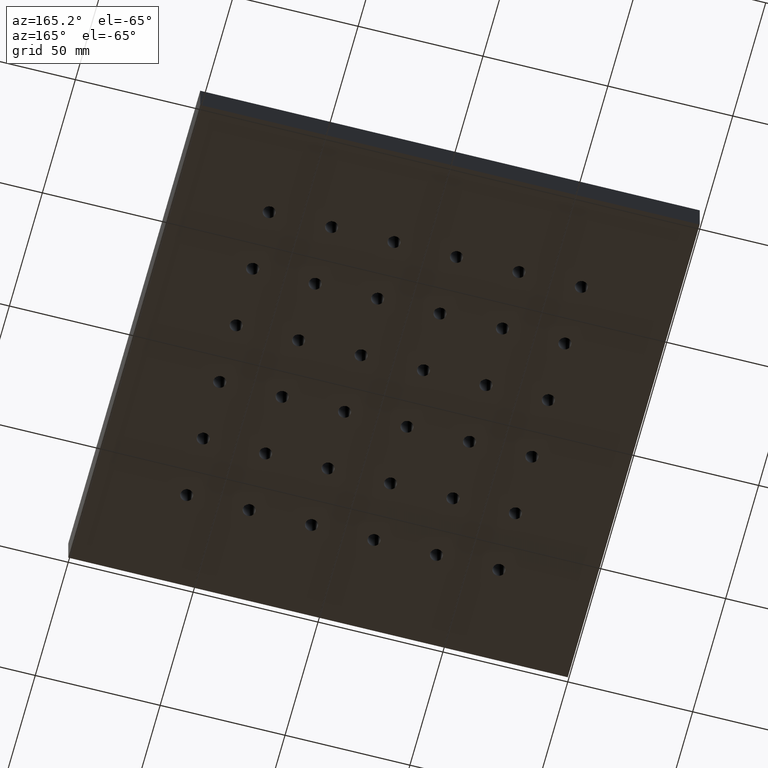
[diagram: clean part render]
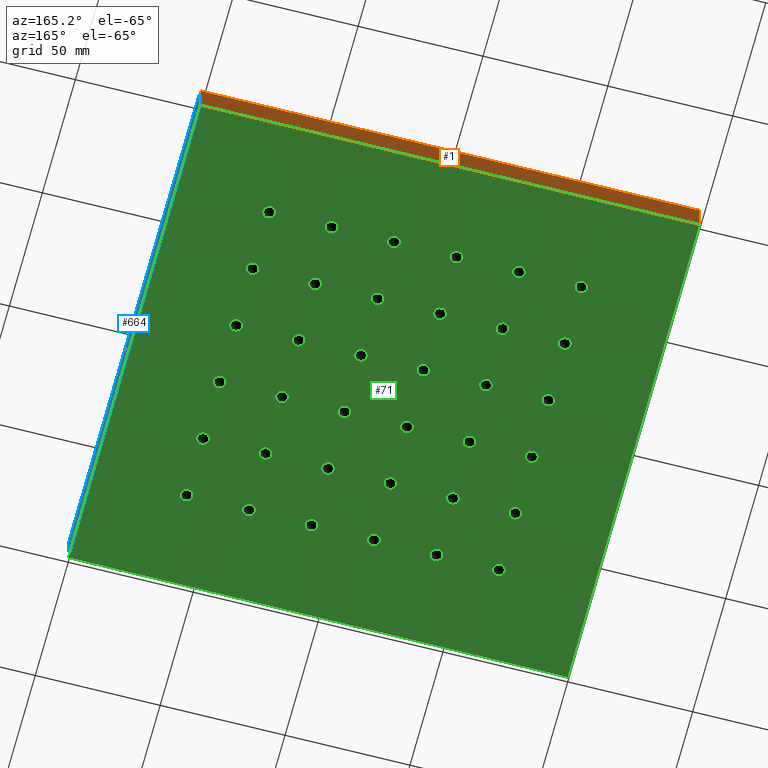
[diagram: same view with three faces highlighted in distinct colors, each labeled with its STEP entity id]
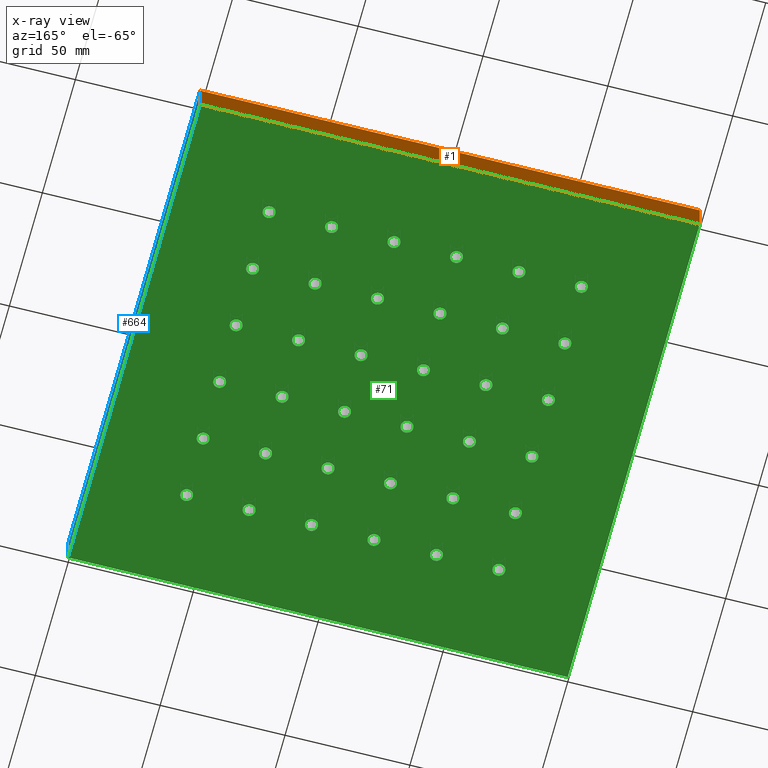
[diagram: x-ray of the same camera — body ghosted, the three highlighted faces saturated]
A machine part, auxiliary view with three faces highlighted in distinct colors.
The next image is the same camera in x-ray (body ghosted, the three faces saturated) — at least one of them is partly hidden behind the body in this view.
Their STEP definitions:

[orange] entity #1 — the highlighted planar face has unit normal (0, -1, 0).
#1 = ADVANCED_FACE ( 'NONE', ( #2559 ), #1654, .F. ) ;
#166 = CARTESIAN_POINT ( 'NONE',  ( -100.0000000000000000, 99.99999999999997200, 0.0000000000000000000 ) ) ;
#210 = CARTESIAN_POINT ( 'NONE',  ( -100.0000000000000000, 99.99999999999997200, 13.00000000000000000 ) ) ;
#243 = VERTEX_POINT ( 'NONE', #654 ) ;
#248 = VECTOR ( 'NONE', #652, 1000.000000000000000 ) ;
#282 = VECTOR ( 'NONE', #2788, 1000.000000000000000 ) ;
#364 = EDGE_CURVE ( 'NONE', #243, #558, #1466, .T. ) ;
#394 = ORIENTED_EDGE ( 'NONE', *, *, #1491, .T. ) ;
#443 = CARTESIAN_POINT ( 'NONE',  ( 100.0000000000000000, 99.99999999999997200, 13.00000000000000000 ) ) ;
#558 = VERTEX_POINT ( 'NONE', #672 ) ;
#573 = CARTESIAN_POINT ( 'NONE',  ( 100.0000000000000000, 99.99999999999997200, 0.0000000000000000000 ) ) ;
#652 = DIRECTION ( 'NONE',  ( -1.000000000000000000, -0.0000000000000000000, -0.0000000000000000000 ) ) ;
#654 = CARTESIAN_POINT ( 'NONE',  ( -100.0000000000000000, 99.99999999999997200, 13.00000000000000000 ) ) ;
#672 = CARTESIAN_POINT ( 'NONE',  ( -100.0000000000000000, 99.99999999999997200, 0.0000000000000000000 ) ) ;
#805 = ORIENTED_EDGE ( 'NONE', *, *, #1324, .T. ) ;
#932 = EDGE_LOOP ( 'NONE', ( #805, #1661, #934, #394 ) ) ;
#934 = ORIENTED_EDGE ( 'NONE', *, *, #2152, .F. ) ;
#994 = DIRECTION ( 'NONE',  ( 0.0000000000000000000, -1.000000000000000000, 0.0000000000000000000 ) ) ;
#1034 = DIRECTION ( 'NONE',  ( -1.000000000000000000, -0.0000000000000000000, -0.0000000000000000000 ) ) ;
#1109 = DIRECTION ( 'NONE',  ( -0.0000000000000000000, -0.0000000000000000000, -1.000000000000000000 ) ) ;
#1245 = VECTOR ( 'NONE', #1034, 1000.000000000000000 ) ;
#1324 = EDGE_CURVE ( 'NONE', #2483, #558, #2346, .T. ) ;
#1351 = VERTEX_POINT ( 'NONE', #2617 ) ;
#1419 = VECTOR ( 'NONE', #1109, 1000.000000000000000 ) ;
#1466 = LINE ( 'NONE', #2567, #282 ) ;
#1486 = LINE ( 'NONE', #443, #1419 ) ;
#1491 = EDGE_CURVE ( 'NONE', #1351, #2483, #1486, .T. ) ;
#1654 = PLANE ( 'NONE',  #2370 ) ;
#1661 = ORIENTED_EDGE ( 'NONE', *, *, #364, .F. ) ;
#1872 = CARTESIAN_POINT ( 'NONE',  ( -100.0000000000000000, 99.99999999999997200, 13.00000000000000000 ) ) ;
#2008 = LINE ( 'NONE', #210, #248 ) ;
#2152 = EDGE_CURVE ( 'NONE', #1351, #243, #2008, .T. ) ;
#2346 = LINE ( 'NONE', #166, #1245 ) ;
#2370 = AXIS2_PLACEMENT_3D ( 'NONE', #1872, #994, #2612 ) ;
#2483 = VERTEX_POINT ( 'NONE', #573 ) ;
#2559 = FACE_OUTER_BOUND ( 'NONE', #932, .T. ) ;
#2567 = CARTESIAN_POINT ( 'NONE',  ( -100.0000000000000000, 99.99999999999997200, 13.00000000000000000 ) ) ;
#2612 = DIRECTION ( 'NONE',  ( 0.0000000000000000000, -0.0000000000000000000, -1.000000000000000000 ) ) ;
#2617 = CARTESIAN_POINT ( 'NONE',  ( 100.0000000000000000, 99.99999999999997200, 13.00000000000000000 ) ) ;
#2788 = DIRECTION ( 'NONE',  ( -0.0000000000000000000, -0.0000000000000000000, -1.000000000000000000 ) ) ;

[blue] entity #664 — the highlighted planar face has unit normal (-1, -0, 0).
#133 = CARTESIAN_POINT ( 'NONE',  ( 100.0000000000000600, -100.0000000000000300, 13.00000000000000000 ) ) ;
#233 = DIRECTION ( 'NONE',  ( -2.775557561562891400E-016, 1.000000000000000000, -0.0000000000000000000 ) ) ;
#274 = ORIENTED_EDGE ( 'NONE', *, *, #1959, .T. ) ;
#289 = DIRECTION ( 'NONE',  ( -1.000000000000000000, -2.775557561562891800E-016, 0.0000000000000000000 ) ) ;
#443 = CARTESIAN_POINT ( 'NONE',  ( 100.0000000000000000, 99.99999999999997200, 13.00000000000000000 ) ) ;
#540 = EDGE_CURVE ( 'NONE', #1210, #1351, #1047, .T. ) ;
#573 = CARTESIAN_POINT ( 'NONE',  ( 100.0000000000000000, 99.99999999999997200, 0.0000000000000000000 ) ) ;
#580 = VECTOR ( 'NONE', #606, 1000.000000000000000 ) ;
#606 = DIRECTION ( 'NONE',  ( -2.775557561562891400E-016, 1.000000000000000000, -0.0000000000000000000 ) ) ;
#664 = ADVANCED_FACE ( 'NONE', ( #2531 ), #2275, .F. ) ;
#688 = ORIENTED_EDGE ( 'NONE', *, *, #1334, .T. ) ;
#728 = VECTOR ( 'NONE', #1238, 1000.000000000000000 ) ;
#824 = CARTESIAN_POINT ( 'NONE',  ( 100.0000000000000000, 99.99999999999997200, 0.0000000000000000000 ) ) ;
#1047 = LINE ( 'NONE', #1341, #1569 ) ;
#1109 = DIRECTION ( 'NONE',  ( -0.0000000000000000000, -0.0000000000000000000, -1.000000000000000000 ) ) ;
#1139 = CARTESIAN_POINT ( 'NONE',  ( 100.0000000000000600, -100.0000000000000300, 13.00000000000000000 ) ) ;
#1210 = VERTEX_POINT ( 'NONE', #1139 ) ;
#1238 = DIRECTION ( 'NONE',  ( -0.0000000000000000000, -0.0000000000000000000, -1.000000000000000000 ) ) ;
#1261 = VERTEX_POINT ( 'NONE', #2573 ) ;
#1326 = LINE ( 'NONE', #133, #728 ) ;
#1334 = EDGE_CURVE ( 'NONE', #1261, #2483, #1825, .T. ) ;
#1341 = CARTESIAN_POINT ( 'NONE',  ( 100.0000000000000000, 99.99999999999997200, 13.00000000000000000 ) ) ;
#1351 = VERTEX_POINT ( 'NONE', #2617 ) ;
#1419 = VECTOR ( 'NONE', #1109, 1000.000000000000000 ) ;
#1481 = ORIENTED_EDGE ( 'NONE', *, *, #540, .F. ) ;
#1486 = LINE ( 'NONE', #443, #1419 ) ;
#1491 = EDGE_CURVE ( 'NONE', #1351, #2483, #1486, .T. ) ;
#1569 = VECTOR ( 'NONE', #233, 1000.000000000000000 ) ;
#1746 = ORIENTED_EDGE ( 'NONE', *, *, #1491, .F. ) ;
#1825 = LINE ( 'NONE', #824, #580 ) ;
#1838 = DIRECTION ( 'NONE',  ( 2.775557561562891800E-016, -1.000000000000000000, 0.0000000000000000000 ) ) ;
#1879 = EDGE_LOOP ( 'NONE', ( #688, #1746, #1481, #274 ) ) ;
#1929 = AXIS2_PLACEMENT_3D ( 'NONE', #2721, #289, #1838 ) ;
#1959 = EDGE_CURVE ( 'NONE', #1210, #1261, #1326, .T. ) ;
#2275 = PLANE ( 'NONE',  #1929 ) ;
#2483 = VERTEX_POINT ( 'NONE', #573 ) ;
#2531 = FACE_OUTER_BOUND ( 'NONE', #1879, .T. ) ;
#2573 = CARTESIAN_POINT ( 'NONE',  ( 100.0000000000000600, -100.0000000000000300, 0.0000000000000000000 ) ) ;
#2617 = CARTESIAN_POINT ( 'NONE',  ( 100.0000000000000000, 99.99999999999997200, 13.00000000000000000 ) ) ;
#2721 = CARTESIAN_POINT ( 'NONE',  ( 100.0000000000000000, 99.99999999999997200, 13.00000000000000000 ) ) ;

[green] entity #71 — the highlighted planar face has unit normal (-0, 0, 1).
#3 = VERTEX_POINT ( 'NONE', #2087 ) ;
#4 = EDGE_CURVE ( 'NONE', #2769, #2252, #1564, .T. ) ;
#6 = CARTESIAN_POINT ( 'NONE',  ( 62.49999999999991500, 12.50000000000003200, 0.0000000000000000000 ) ) ;
#8 = FACE_BOUND ( 'NONE', #1560, .T. ) ;
#9 = EDGE_LOOP ( 'NONE', ( #1582, #1826 ) ) ;
#18 = DIRECTION ( 'NONE',  ( -0.0000000000000000000, -0.0000000000000000000, 1.000000000000000000 ) ) ;
#22 = DIRECTION ( 'NONE',  ( 1.000000000000000000, 0.0000000000000000000, 0.0000000000000000000 ) ) ;
#23 = VERTEX_POINT ( 'NONE', #1857 ) ;
#25 = CIRCLE ( 'NONE', #507, 2.499999999999995100 ) ;
#28 = CARTESIAN_POINT ( 'NONE',  ( -10.00000000000008500, 37.50000000000003600, 0.0000000000000000000 ) ) ;
#30 = EDGE_CURVE ( 'NONE', #1557, #2829, #208, .T. ) ;
#33 = CARTESIAN_POINT ( 'NONE',  ( -40.00000000000007800, -62.49999999999997900, 0.0000000000000000000 ) ) ;
#44 = VERTEX_POINT ( 'NONE', #1848 ) ;
#49 = CARTESIAN_POINT ( 'NONE',  ( -12.50000000000008000, -62.49999999999997900, 0.0000000000000000000 ) ) ;
#53 = AXIS2_PLACEMENT_3D ( 'NONE', #357, #209, #872 ) ;
#58 = AXIS2_PLACEMENT_3D ( 'NONE', #2092, #777, #2328 ) ;
#65 = AXIS2_PLACEMENT_3D ( 'NONE', #1694, #361, #1912 ) ;
#67 = VERTEX_POINT ( 'NONE', #2509 ) ;
#71 = ADVANCED_FACE ( 'NONE', ( #76, #724, #2354, #1766, #2501, #1180, #586, #8, #2284, #1697, #1115, #519, #2802, #2216, #1631, #1039, #454, #2736, #2141, #1562, #965, #375, #2668, #2064, #1493, #895, #307, #2594, #1999, #1426, #822, #241, #2526, #1706, #1124, #530, #2812 ), #1409, .F. ) ;
#75 = EDGE_LOOP ( 'NONE', ( #2322, #2196 ) ) ;
#76 = FACE_BOUND ( 'NONE', #1274, .T. ) ;
#78 = ORIENTED_EDGE ( 'NONE', *, *, #1296, .T. ) ;
#79 = ORIENTED_EDGE ( 'NONE', *, *, #976, .T. ) ;
#84 = ORIENTED_EDGE ( 'NONE', *, *, #2572, .T. ) ;
#87 = DIRECTION ( 'NONE',  ( 1.000000000000000000, 0.0000000000000000000, 0.0000000000000000000 ) ) ;
#100 = EDGE_CURVE ( 'NONE', #2393, #682, #2224, .T. ) ;
#101 = AXIS2_PLACEMENT_3D ( 'NONE', #2805, #1482, #159 ) ;
#107 = CIRCLE ( 'NONE', #499, 2.499999999999995100 ) ;
#120 = ORIENTED_EDGE ( 'NONE', *, *, #2849, .T. ) ;
#126 = AXIS2_PLACEMENT_3D ( 'NONE', #2414, #2193, #857 ) ;
#128 = CARTESIAN_POINT ( 'NONE',  ( -15.00000000000007600, 12.50000000000003200, 0.0000000000000000000 ) ) ;
#129 = EDGE_LOOP ( 'NONE', ( #1923, #1802 ) ) ;
#137 = CARTESIAN_POINT ( 'NONE',  ( -65.00000000000008500, 62.50000000000002800, 0.0000000000000000000 ) ) ;
#138 = EDGE_LOOP ( 'NONE', ( #1925, #120 ) ) ;
#140 = EDGE_CURVE ( 'NONE', #2672, #1793, #2677, .T. ) ;
#143 = DIRECTION ( 'NONE',  ( -0.0000000000000000000, -0.0000000000000000000, 1.000000000000000000 ) ) ;
#157 = EDGE_CURVE ( 'NONE', #986, #1166, #318, .T. ) ;
#159 = DIRECTION ( 'NONE',  ( 1.000000000000000000, 0.0000000000000000000, 0.0000000000000000000 ) ) ;
#161 = CARTESIAN_POINT ( 'NONE',  ( 14.99999999999992400, -62.49999999999997900, 0.0000000000000000000 ) ) ;
#162 = DIRECTION ( 'NONE',  ( -0.0000000000000000000, -0.0000000000000000000, 1.000000000000000000 ) ) ;
#163 = AXIS2_PLACEMENT_3D ( 'NONE', #1547, #1323, #1281 ) ;
#164 = EDGE_CURVE ( 'NONE', #1317, #1663, #907, .T. ) ;
#166 = CARTESIAN_POINT ( 'NONE',  ( -100.0000000000000000, 99.99999999999997200, 0.0000000000000000000 ) ) ;
#167 = DIRECTION ( 'NONE',  ( -0.0000000000000000000, -0.0000000000000000000, 1.000000000000000000 ) ) ;
#168 = CARTESIAN_POINT ( 'NONE',  ( -37.50000000000008500, -37.49999999999997900, 0.0000000000000000000 ) ) ;
#173 = EDGE_CURVE ( 'NONE', #2499, #2511, #833, .T. ) ;
#180 = CARTESIAN_POINT ( 'NONE',  ( -65.00000000000008500, -62.49999999999997900, 0.0000000000000000000 ) ) ;
#181 = CIRCLE ( 'NONE', #1788, 2.499999999999995100 ) ;
#188 = EDGE_LOOP ( 'NONE', ( #2030, #1397 ) ) ;
#194 = CARTESIAN_POINT ( 'NONE',  ( -37.50000000000008500, -37.49999999999997900, 0.0000000000000000000 ) ) ;
#202 = DIRECTION ( 'NONE',  ( 1.000000000000000000, 0.0000000000000000000, 0.0000000000000000000 ) ) ;
#203 = CIRCLE ( 'NONE', #101, 2.500000000000002200 ) ;
#208 = CIRCLE ( 'NONE', #2514, 2.499999999999995100 ) ;
#209 = DIRECTION ( 'NONE',  ( -0.0000000000000000000, -0.0000000000000000000, 1.000000000000000000 ) ) ;
#215 = DIRECTION ( 'NONE',  ( -0.0000000000000000000, -0.0000000000000000000, 1.000000000000000000 ) ) ;
#216 = CIRCLE ( 'NONE', #1515, 2.500000000000002200 ) ;
#224 = DIRECTION ( 'NONE',  ( 1.000000000000000000, 0.0000000000000000000, 0.0000000000000000000 ) ) ;
#241 = FACE_BOUND ( 'NONE', #1239, .T. ) ;
#246 = AXIS2_PLACEMENT_3D ( 'NONE', #598, #2144, #810 ) ;
#247 = CIRCLE ( 'NONE', #2077, 2.499999999999995100 ) ;
#251 = AXIS2_PLACEMENT_3D ( 'NONE', #998, #2543, #1225 ) ;
#252 = CARTESIAN_POINT ( 'NONE',  ( -40.00000000000007800, -37.49999999999997900, 0.0000000000000000000 ) ) ;
#255 = CIRCLE ( 'NONE', #1250, 2.499999999999995100 ) ;
#259 = DIRECTION ( 'NONE',  ( -0.0000000000000000000, -0.0000000000000000000, 1.000000000000000000 ) ) ;
#260 = CARTESIAN_POINT ( 'NONE',  ( 37.49999999999992900, -37.49999999999997900, 0.0000000000000000000 ) ) ;
#261 = DIRECTION ( 'NONE',  ( 1.000000000000000000, 0.0000000000000000000, 0.0000000000000000000 ) ) ;
#262 = AXIS2_PLACEMENT_3D ( 'NONE', #2729, #1412, #87 ) ;
#267 = DIRECTION ( 'NONE',  ( -0.0000000000000000000, -0.0000000000000000000, 1.000000000000000000 ) ) ;
#287 = EDGE_CURVE ( 'NONE', #2760, #1640, #1290, .T. ) ;
#288 = VERTEX_POINT ( 'NONE', #376 ) ;
#303 = ORIENTED_EDGE ( 'NONE', *, *, #535, .T. ) ;
#307 = FACE_BOUND ( 'NONE', #138, .T. ) ;
#315 = CIRCLE ( 'NONE', #603, 2.499999999999995100 ) ;
#316 = CIRCLE ( 'NONE', #2090, 2.499999999999995100 ) ;
#318 = CIRCLE ( 'NONE', #2162, 2.499999999999995100 ) ;
#319 = EDGE_CURVE ( 'NONE', #889, #2735, #422, .T. ) ;
#320 = CARTESIAN_POINT ( 'NONE',  ( 12.49999999999992700, -12.49999999999997700, 0.0000000000000000000 ) ) ;
#323 = AXIS2_PLACEMENT_3D ( 'NONE', #2311, #987, #2534 ) ;
#324 = EDGE_LOOP ( 'NONE', ( #2129, #410 ) ) ;
#325 = CIRCLE ( 'NONE', #1404, 2.499999999999995100 ) ;
#329 = DIRECTION ( 'NONE',  ( -0.0000000000000000000, -0.0000000000000000000, 1.000000000000000000 ) ) ;
#339 = AXIS2_PLACEMENT_3D ( 'NONE', #1037, #591, #1255 ) ;
#340 = EDGE_LOOP ( 'NONE', ( #570, #1993, #2467, #970 ) ) ;
#348 = CARTESIAN_POINT ( 'NONE',  ( -99.99999999999997200, -100.0000000000000300, 0.0000000000000000000 ) ) ;
#357 = CARTESIAN_POINT ( 'NONE',  ( -62.50000000000008500, -62.49999999999997900, 0.0000000000000000000 ) ) ;
#361 = DIRECTION ( 'NONE',  ( -0.0000000000000000000, -0.0000000000000000000, 1.000000000000000000 ) ) ;
#365 = DIRECTION ( 'NONE',  ( -0.0000000000000000000, -0.0000000000000000000, 1.000000000000000000 ) ) ;
#368 = CARTESIAN_POINT ( 'NONE',  ( 62.49999999999991500, -62.49999999999997900, 0.0000000000000000000 ) ) ;
#371 = EDGE_LOOP ( 'NONE', ( #2801, #2490 ) ) ;
#375 = FACE_BOUND ( 'NONE', #1517, .T. ) ;
#376 = CARTESIAN_POINT ( 'NONE',  ( 9.999999999999932500, -12.49999999999997700, 0.0000000000000000000 ) ) ;
#380 = VERTEX_POINT ( 'NONE', #1894 ) ;
#392 = EDGE_CURVE ( 'NONE', #1169, #1470, #797, .T. ) ;
#393 = AXIS2_PLACEMENT_3D ( 'NONE', #2589, #1265, #2816 ) ;
#403 = VERTEX_POINT ( 'NONE', #1235 ) ;
#404 = CARTESIAN_POINT ( 'NONE',  ( 14.99999999999992400, -12.49999999999997700, 0.0000000000000000000 ) ) ;
#410 = ORIENTED_EDGE ( 'NONE', *, *, #1641, .T. ) ;
#413 = EDGE_LOOP ( 'NONE', ( #2747, #723 ) ) ;
#414 = DIRECTION ( 'NONE',  ( 1.000000000000000000, 0.0000000000000000000, 0.0000000000000000000 ) ) ;
#422 = CIRCLE ( 'NONE', #1519, 2.499999999999995100 ) ;
#434 = DIRECTION ( 'NONE',  ( 1.000000000000000000, 0.0000000000000000000, 0.0000000000000000000 ) ) ;
#435 = CARTESIAN_POINT ( 'NONE',  ( 62.49999999999991500, -12.49999999999997700, 0.0000000000000000000 ) ) ;
#441 = CARTESIAN_POINT ( 'NONE',  ( -99.99999999999997200, -100.0000000000000300, 0.0000000000000000000 ) ) ;
#454 = FACE_BOUND ( 'NONE', #75, .T. ) ;
#455 = VERTEX_POINT ( 'NONE', #1968 ) ;
#460 = CIRCLE ( 'NONE', #163, 2.499999999999995100 ) ;
#461 = AXIS2_PLACEMENT_3D ( 'NONE', #1040, #2468, #2810 ) ;
#466 = EDGE_LOOP ( 'NONE', ( #1237, #1277 ) ) ;
#467 = EDGE_CURVE ( 'NONE', #2176, #1646, #1256, .T. ) ;
#469 = ORIENTED_EDGE ( 'NONE', *, *, #963, .T. ) ;
#474 = CARTESIAN_POINT ( 'NONE',  ( -10.00000000000008500, -37.49999999999997900, 0.0000000000000000000 ) ) ;
#477 = AXIS2_PLACEMENT_3D ( 'NONE', #1655, #329, #1873 ) ;
#486 = VERTEX_POINT ( 'NONE', #404 ) ;
#488 = EDGE_LOOP ( 'NONE', ( #2247, #1529 ) ) ;
#489 = DIRECTION ( 'NONE',  ( 1.000000000000000000, 0.0000000000000000000, 0.0000000000000000000 ) ) ;
#495 = EDGE_LOOP ( 'NONE', ( #303, #2539 ) ) ;
#499 = AXIS2_PLACEMENT_3D ( 'NONE', #1685, #1903, #578 ) ;
#505 = EDGE_LOOP ( 'NONE', ( #2479, #2209 ) ) ;
#506 = CARTESIAN_POINT ( 'NONE',  ( -15.00000000000007600, -12.49999999999997700, 0.0000000000000000000 ) ) ;
#507 = AXIS2_PLACEMENT_3D ( 'NONE', #2365, #1035, #2581 ) ;
#508 = DIRECTION ( 'NONE',  ( -0.0000000000000000000, -0.0000000000000000000, 1.000000000000000000 ) ) ;
#511 = CARTESIAN_POINT ( 'NONE',  ( -40.00000000000007800, -12.49999999999997700, 0.0000000000000000000 ) ) ;
#513 = CARTESIAN_POINT ( 'NONE',  ( -35.00000000000008500, 12.50000000000003200, 0.0000000000000000000 ) ) ;
#515 = VERTEX_POINT ( 'NONE', #1293 ) ;
#519 = FACE_BOUND ( 'NONE', #1554, .T. ) ;
#523 = CIRCLE ( 'NONE', #710, 2.499999999999995100 ) ;
#524 = EDGE_CURVE ( 'NONE', #1470, #1169, #526, .T. ) ;
#526 = CIRCLE ( 'NONE', #2737, 2.499999999999995100 ) ;
#529 = CARTESIAN_POINT ( 'NONE',  ( -60.00000000000008500, 12.50000000000003200, 0.0000000000000000000 ) ) ;
#530 = FACE_BOUND ( 'NONE', #488, .T. ) ;
#532 = ORIENTED_EDGE ( 'NONE', *, *, #945, .T. ) ;
#535 = EDGE_CURVE ( 'NONE', #2423, #732, #2808, .T. ) ;
#538 = CIRCLE ( 'NONE', #951, 2.499999999999995100 ) ;
#542 = DIRECTION ( 'NONE',  ( 1.000000000000000000, 0.0000000000000000000, 0.0000000000000000000 ) ) ;
#546 = CARTESIAN_POINT ( 'NONE',  ( -62.50000000000008500, 12.50000000000003200, 0.0000000000000000000 ) ) ;
#548 = CIRCLE ( 'NONE', #1130, 2.499999999999995100 ) ;
#552 = CIRCLE ( 'NONE', #1236, 2.500000000000002200 ) ;
#558 = VERTEX_POINT ( 'NONE', #672 ) ;
#568 = CIRCLE ( 'NONE', #597, 2.499999999999995100 ) ;
#570 = ORIENTED_EDGE ( 'NONE', *, *, #1334, .F. ) ;
#571 = AXIS2_PLACEMENT_3D ( 'NONE', #2637, #1310, #2858 ) ;
#573 = CARTESIAN_POINT ( 'NONE',  ( 100.0000000000000000, 99.99999999999997200, 0.0000000000000000000 ) ) ;
#575 = EDGE_CURVE ( 'NONE', #1036, #403, #460, .T. ) ;
#576 = CARTESIAN_POINT ( 'NONE',  ( -12.50000000000008000, -62.49999999999997900, 0.0000000000000000000 ) ) ;
#578 = DIRECTION ( 'NONE',  ( 1.000000000000000000, 0.0000000000000000000, 0.0000000000000000000 ) ) ;
#580 = VECTOR ( 'NONE', #606, 1000.000000000000000 ) ;
#584 = ORIENTED_EDGE ( 'NONE', *, *, #164, .T. ) ;
#585 = CARTESIAN_POINT ( 'NONE',  ( -65.00000000000008500, 12.50000000000003200, 0.0000000000000000000 ) ) ;
#586 = FACE_BOUND ( 'NONE', #1314, .T. ) ;
#591 = DIRECTION ( 'NONE',  ( -0.0000000000000000000, -0.0000000000000000000, 1.000000000000000000 ) ) ;
#596 = EDGE_CURVE ( 'NONE', #759, #983, #973, .T. ) ;
#597 = AXIS2_PLACEMENT_3D ( 'NONE', #2476, #1151, #2693 ) ;
#598 = CARTESIAN_POINT ( 'NONE',  ( -12.50000000000008000, -12.49999999999997700, 0.0000000000000000000 ) ) ;
#600 = CARTESIAN_POINT ( 'NONE',  ( 39.99999999999991500, -62.49999999999997900, 0.0000000000000000000 ) ) ;
#603 = AXIS2_PLACEMENT_3D ( 'NONE', #2488, #1165, #2708 ) ;
#604 = EDGE_CURVE ( 'NONE', #2094, #790, #315, .T. ) ;
#606 = DIRECTION ( 'NONE',  ( -2.775557561562891400E-016, 1.000000000000000000, -0.0000000000000000000 ) ) ;
#612 = DIRECTION ( 'NONE',  ( -0.0000000000000000000, -0.0000000000000000000, 1.000000000000000000 ) ) ;
#614 = AXIS2_PLACEMENT_3D ( 'NONE', #771, #2321, #995 ) ;
#616 = CIRCLE ( 'NONE', #938, 2.500000000000002200 ) ;
#623 = CARTESIAN_POINT ( 'NONE',  ( 12.49999999999992700, -12.49999999999997700, 0.0000000000000000000 ) ) ;
#627 = DIRECTION ( 'NONE',  ( -0.0000000000000000000, -0.0000000000000000000, 1.000000000000000000 ) ) ;
#629 = CARTESIAN_POINT ( 'NONE',  ( 64.99999999999991500, -37.49999999999997900, 0.0000000000000000000 ) ) ;
#633 = EDGE_LOOP ( 'NONE', ( #78, #1098 ) ) ;
#639 = CARTESIAN_POINT ( 'NONE',  ( 34.99999999999993600, 12.50000000000003200, 0.0000000000000000000 ) ) ;
#641 = AXIS2_PLACEMENT_3D ( 'NONE', #1021, #2564, #1243 ) ;
#643 = EDGE_CURVE ( 'NONE', #1414, #2055, #829, .T. ) ;
#646 = CARTESIAN_POINT ( 'NONE',  ( -37.50000000000008500, 37.50000000000003600, 0.0000000000000000000 ) ) ;
#650 = CIRCLE ( 'NONE', #1733, 2.499999999999995100 ) ;
#655 = ORIENTED_EDGE ( 'NONE', *, *, #2069, .T. ) ;
#656 = DIRECTION ( 'NONE',  ( 1.000000000000000000, 0.0000000000000000000, 0.0000000000000000000 ) ) ;
#658 = CARTESIAN_POINT ( 'NONE',  ( -60.00000000000008500, -37.49999999999997900, 0.0000000000000000000 ) ) ;
#672 = CARTESIAN_POINT ( 'NONE',  ( -100.0000000000000000, 99.99999999999997200, 0.0000000000000000000 ) ) ;
#674 = EDGE_CURVE ( 'NONE', #1755, #1699, #181, .T. ) ;
#675 = VECTOR ( 'NONE', #2780, 1000.000000000000000 ) ;
#682 = VERTEX_POINT ( 'NONE', #1846 ) ;
#689 = CIRCLE ( 'NONE', #641, 2.500000000000002200 ) ;
#692 = AXIS2_PLACEMENT_3D ( 'NONE', #2856, #1534, #202 ) ;
#696 = VERTEX_POINT ( 'NONE', #1417 ) ;
#703 = EDGE_CURVE ( 'NONE', #515, #1103, #247, .T. ) ;
#710 = AXIS2_PLACEMENT_3D ( 'NONE', #2297, #966, #2516 ) ;
#715 = EDGE_CURVE ( 'NONE', #288, #486, #1218, .T. ) ;
#718 = CIRCLE ( 'NONE', #393, 2.499999999999995100 ) ;
#722 = EDGE_CURVE ( 'NONE', #67, #2067, #1738, .T. ) ;
#723 = ORIENTED_EDGE ( 'NONE', *, *, #1312, .T. ) ;
#724 = FACE_BOUND ( 'NONE', #1038, .T. ) ;
#725 = ORIENTED_EDGE ( 'NONE', *, *, #2332, .T. ) ;
#729 = DIRECTION ( 'NONE',  ( 1.000000000000000000, 0.0000000000000000000, 0.0000000000000000000 ) ) ;
#732 = VERTEX_POINT ( 'NONE', #2082 ) ;
#734 = CARTESIAN_POINT ( 'NONE',  ( -35.00000000000008500, -12.49999999999997700, 0.0000000000000000000 ) ) ;
#741 = AXIS2_PLACEMENT_3D ( 'NONE', #260, #1809, #489 ) ;
#745 = DIRECTION ( 'NONE',  ( 1.000000000000000000, 0.0000000000000000000, 0.0000000000000000000 ) ) ;
#747 = EDGE_CURVE ( 'NONE', #380, #1627, #2846, .T. ) ;
#748 = DIRECTION ( 'NONE',  ( -0.0000000000000000000, -0.0000000000000000000, 1.000000000000000000 ) ) ;
#758 = CARTESIAN_POINT ( 'NONE',  ( -15.00000000000007600, 62.50000000000002800, 0.0000000000000000000 ) ) ;
#759 = VERTEX_POINT ( 'NONE', #1447 ) ;
#765 = DIRECTION ( 'NONE',  ( 1.000000000000000000, 0.0000000000000000000, 0.0000000000000000000 ) ) ;
#771 = CARTESIAN_POINT ( 'NONE',  ( -62.50000000000008500, 62.50000000000002800, 0.0000000000000000000 ) ) ;
#777 = DIRECTION ( 'NONE',  ( -0.0000000000000000000, -0.0000000000000000000, 1.000000000000000000 ) ) ;
#779 = EDGE_CURVE ( 'NONE', #1663, #1317, #1007, .T. ) ;
#782 = CARTESIAN_POINT ( 'NONE',  ( -60.00000000000008500, -62.49999999999997900, 0.0000000000000000000 ) ) ;
#789 = DIRECTION ( 'NONE',  ( -0.0000000000000000000, -0.0000000000000000000, 1.000000000000000000 ) ) ;
#790 = VERTEX_POINT ( 'NONE', #128 ) ;
#795 = DIRECTION ( 'NONE',  ( 1.000000000000000000, 0.0000000000000000000, 0.0000000000000000000 ) ) ;
#796 = AXIS2_PLACEMENT_3D ( 'NONE', #2147, #811, #2374 ) ;
#797 = CIRCLE ( 'NONE', #1950, 2.499999999999995100 ) ;
#800 = DIRECTION ( 'NONE',  ( -0.0000000000000000000, -0.0000000000000000000, 1.000000000000000000 ) ) ;
#803 = CARTESIAN_POINT ( 'NONE',  ( 62.49999999999991500, -37.49999999999997900, 0.0000000000000000000 ) ) ;
#810 = DIRECTION ( 'NONE',  ( 1.000000000000000000, 0.0000000000000000000, 0.0000000000000000000 ) ) ;
#811 = DIRECTION ( 'NONE',  ( -0.0000000000000000000, -0.0000000000000000000, 1.000000000000000000 ) ) ;
#817 = AXIS2_PLACEMENT_3D ( 'NONE', #953, #2278, #729 ) ;
#819 = CIRCLE ( 'NONE', #1739, 2.499999999999995100 ) ;
#822 = FACE_BOUND ( 'NONE', #2597, .T. ) ;
#824 = CARTESIAN_POINT ( 'NONE',  ( 100.0000000000000000, 99.99999999999997200, 0.0000000000000000000 ) ) ;
#827 = CARTESIAN_POINT ( 'NONE',  ( 64.99999999999991500, -12.49999999999997700, 0.0000000000000000000 ) ) ;
#829 = CIRCLE ( 'NONE', #1199, 2.499999999999995100 ) ;
#832 = ORIENTED_EDGE ( 'NONE', *, *, #703, .T. ) ;
#833 = CIRCLE ( 'NONE', #2466, 2.499999999999995100 ) ;
#842 = AXIS2_PLACEMENT_3D ( 'NONE', #2112, #789, #2340 ) ;
#845 = DIRECTION ( 'NONE',  ( 1.000000000000000000, 0.0000000000000000000, 0.0000000000000000000 ) ) ;
#851 = DIRECTION ( 'NONE',  ( -0.0000000000000000000, -0.0000000000000000000, 1.000000000000000000 ) ) ;
#857 = DIRECTION ( 'NONE',  ( 1.000000000000000000, 0.0000000000000000000, 0.0000000000000000000 ) ) ;
#859 = ORIENTED_EDGE ( 'NONE', *, *, #1072, .T. ) ;
#865 = DIRECTION ( 'NONE',  ( 1.000000000000000000, 0.0000000000000000000, 0.0000000000000000000 ) ) ;
#872 = DIRECTION ( 'NONE',  ( 1.000000000000000000, 0.0000000000000000000, 0.0000000000000000000 ) ) ;
#877 = CARTESIAN_POINT ( 'NONE',  ( -100.0000000000000000, 99.99999999999997200, 0.0000000000000000000 ) ) ;
#878 = EDGE_CURVE ( 'NONE', #1006, #2458, #2062, .T. ) ;
#881 = CARTESIAN_POINT ( 'NONE',  ( -62.50000000000008500, -62.49999999999997900, 0.0000000000000000000 ) ) ;
#889 = VERTEX_POINT ( 'NONE', #1847 ) ;
#894 = DIRECTION ( 'NONE',  ( -0.0000000000000000000, -0.0000000000000000000, 1.000000000000000000 ) ) ;
#895 = FACE_BOUND ( 'NONE', #371, .T. ) ;
#907 = CIRCLE ( 'NONE', #2010, 2.499999999999995100 ) ;
#910 = DIRECTION ( 'NONE',  ( -0.0000000000000000000, -0.0000000000000000000, 1.000000000000000000 ) ) ;
#914 = CIRCLE ( 'NONE', #1980, 2.499999999999995100 ) ;
#919 = DIRECTION ( 'NONE',  ( -0.0000000000000000000, -0.0000000000000000000, 1.000000000000000000 ) ) ;
#920 = EDGE_CURVE ( 'NONE', #1979, #2371, #819, .T. ) ;
#938 = AXIS2_PLACEMENT_3D ( 'NONE', #803, #2352, #2575 ) ;
#940 = EDGE_LOOP ( 'NONE', ( #2050, #1728 ) ) ;
#944 = CIRCLE ( 'NONE', #477, 2.499999999999995100 ) ;
#945 = EDGE_CURVE ( 'NONE', #2718, #23, #1353, .T. ) ;
#951 = AXIS2_PLACEMENT_3D ( 'NONE', #1498, #167, #1716 ) ;
#953 = CARTESIAN_POINT ( 'NONE',  ( 0.0000000000000000000, 0.0000000000000000000, 0.0000000000000000000 ) ) ;
#958 = CIRCLE ( 'NONE', #1875, 2.499999999999995100 ) ;
#961 = ORIENTED_EDGE ( 'NONE', *, *, #1827, .T. ) ;
#963 = EDGE_CURVE ( 'NONE', #2829, #1557, #2460, .T. ) ;
#965 = FACE_BOUND ( 'NONE', #505, .T. ) ;
#966 = DIRECTION ( 'NONE',  ( -0.0000000000000000000, -0.0000000000000000000, 1.000000000000000000 ) ) ;
#970 = ORIENTED_EDGE ( 'NONE', *, *, #1324, .F. ) ;
#973 = CIRCLE ( 'NONE', #461, 2.499999999999995100 ) ;
#975 = CARTESIAN_POINT ( 'NONE',  ( -12.50000000000008000, 37.50000000000003600, 0.0000000000000000000 ) ) ;
#976 = EDGE_CURVE ( 'NONE', #2067, #67, #1926, .T. ) ;
#983 = VERTEX_POINT ( 'NONE', #2103 ) ;
#985 = CARTESIAN_POINT ( 'NONE',  ( -37.50000000000008500, -62.49999999999997900, 0.0000000000000000000 ) ) ;
#986 = VERTEX_POINT ( 'NONE', #782 ) ;
#987 = DIRECTION ( 'NONE',  ( -0.0000000000000000000, -0.0000000000000000000, 1.000000000000000000 ) ) ;
#989 = DIRECTION ( 'NONE',  ( -0.0000000000000000000, -0.0000000000000000000, 1.000000000000000000 ) ) ;
#993 = ORIENTED_EDGE ( 'NONE', *, *, #319, .T. ) ;
#995 = DIRECTION ( 'NONE',  ( 1.000000000000000000, 0.0000000000000000000, 0.0000000000000000000 ) ) ;
#998 = CARTESIAN_POINT ( 'NONE',  ( -12.50000000000008000, -37.49999999999997900, 0.0000000000000000000 ) ) ;
#1006 = VERTEX_POINT ( 'NONE', #1460 ) ;
#1007 = CIRCLE ( 'NONE', #842, 2.499999999999995100 ) ;
#1013 = CIRCLE ( 'NONE', #323, 2.499999999999995100 ) ;
#1014 = DIRECTION ( 'NONE',  ( -0.0000000000000000000, -0.0000000000000000000, 1.000000000000000000 ) ) ;
#1015 = EDGE_CURVE ( 'NONE', #682, #2393, #689, .T. ) ;
#1021 = CARTESIAN_POINT ( 'NONE',  ( 62.49999999999991500, -62.49999999999997900, 0.0000000000000000000 ) ) ;
#1022 = ORIENTED_EDGE ( 'NONE', *, *, #2690, .T. ) ;
#1024 = EDGE_CURVE ( 'NONE', #2689, #44, #107, .T. ) ;
#1029 = DIRECTION ( 'NONE',  ( 1.000000000000000000, 0.0000000000000000000, 0.0000000000000000000 ) ) ;
#1030 = EDGE_CURVE ( 'NONE', #2665, #2142, #616, .T. ) ;
#1034 = DIRECTION ( 'NONE',  ( -1.000000000000000000, -0.0000000000000000000, -0.0000000000000000000 ) ) ;
#1035 = DIRECTION ( 'NONE',  ( -0.0000000000000000000, -0.0000000000000000000, 1.000000000000000000 ) ) ;
#1036 = VERTEX_POINT ( 'NONE', #137 ) ;
#1037 = CARTESIAN_POINT ( 'NONE',  ( 37.49999999999992200, 62.50000000000002800, 0.0000000000000000000 ) ) ;
#1038 = EDGE_LOOP ( 'NONE', ( #2733, #2079 ) ) ;
#1039 = FACE_BOUND ( 'NONE', #1488, .T. ) ;
#1040 = CARTESIAN_POINT ( 'NONE',  ( -62.50000000000008500, -12.49999999999997700, 0.0000000000000000000 ) ) ;
#1063 = CARTESIAN_POINT ( 'NONE',  ( 34.99999999999992900, 62.50000000000002800, 0.0000000000000000000 ) ) ;
#1072 = EDGE_CURVE ( 'NONE', #1793, #2672, #552, .T. ) ;
#1071 = CIRCLE ( 'NONE', #1717, 2.499999999999995100 ) ;
#1078 = CARTESIAN_POINT ( 'NONE',  ( 59.99999999999992200, 37.50000000000003600, 0.0000000000000000000 ) ) ;
#1092 = CARTESIAN_POINT ( 'NONE',  ( -10.00000000000008500, 62.50000000000002800, 0.0000000000000000000 ) ) ;
#1098 = ORIENTED_EDGE ( 'NONE', *, *, #674, .T. ) ;
#1100 = DIRECTION ( 'NONE',  ( -0.0000000000000000000, -0.0000000000000000000, 1.000000000000000000 ) ) ;
#1103 = VERTEX_POINT ( 'NONE', #600 ) ;
#1115 = FACE_BOUND ( 'NONE', #2535, .T. ) ;
#1116 = ORIENTED_EDGE ( 'NONE', *, *, #1568, .T. ) ;
#1117 = DIRECTION ( 'NONE',  ( -0.0000000000000000000, -0.0000000000000000000, 1.000000000000000000 ) ) ;
#1124 = FACE_BOUND ( 'NONE', #2137, .T. ) ;
#1125 = DIRECTION ( 'NONE',  ( -0.0000000000000000000, -0.0000000000000000000, 1.000000000000000000 ) ) ;
#1130 = AXIS2_PLACEMENT_3D ( 'NONE', #2237, #910, #2464 ) ;
#1136 = AXIS2_PLACEMENT_3D ( 'NONE', #368, #1401, #2692 ) ;
#1138 = CARTESIAN_POINT ( 'NONE',  ( 34.99999999999993600, -37.49999999999997900, 0.0000000000000000000 ) ) ;
#1143 = AXIS2_PLACEMENT_3D ( 'NONE', #1946, #627, #2174 ) ;
#1151 = DIRECTION ( 'NONE',  ( -0.0000000000000000000, -0.0000000000000000000, 1.000000000000000000 ) ) ;
#1153 = CARTESIAN_POINT ( 'NONE',  ( 39.99999999999992200, 37.50000000000003600, 0.0000000000000000000 ) ) ;
#1163 = DIRECTION ( 'NONE',  ( -0.0000000000000000000, -0.0000000000000000000, 1.000000000000000000 ) ) ;
#1165 = DIRECTION ( 'NONE',  ( -0.0000000000000000000, -0.0000000000000000000, 1.000000000000000000 ) ) ;
#1166 = VERTEX_POINT ( 'NONE', #180 ) ;
#1169 = VERTEX_POINT ( 'NONE', #1737 ) ;
#1174 = EDGE_LOOP ( 'NONE', ( #2815, #2555 ) ) ;
#1175 = EDGE_CURVE ( 'NONE', #1556, #2774, #2838, .T. ) ;
#1180 = FACE_BOUND ( 'NONE', #413, .T. ) ;
#1187 = CARTESIAN_POINT ( 'NONE',  ( -12.50000000000008000, -12.49999999999997700, 0.0000000000000000000 ) ) ;
#1190 = ORIENTED_EDGE ( 'NONE', *, *, #779, .T. ) ;
#1193 = CARTESIAN_POINT ( 'NONE',  ( 64.99999999999991500, 12.50000000000003200, 0.0000000000000000000 ) ) ;
#1195 = CIRCLE ( 'NONE', #2786, 2.499999999999995100 ) ;
#1199 = AXIS2_PLACEMENT_3D ( 'NONE', #1824, #508, #2046 ) ;
#1207 = ORIENTED_EDGE ( 'NONE', *, *, #1859, .T. ) ;
#1218 = CIRCLE ( 'NONE', #2687, 2.499999999999995100 ) ;
#1220 = EDGE_CURVE ( 'NONE', #2388, #2091, #2496, .T. ) ;
#1225 = DIRECTION ( 'NONE',  ( 1.000000000000000000, 0.0000000000000000000, 0.0000000000000000000 ) ) ;
#1226 = CARTESIAN_POINT ( 'NONE',  ( -60.00000000000008500, 37.50000000000003600, 0.0000000000000000000 ) ) ;
#1227 = CARTESIAN_POINT ( 'NONE',  ( -12.50000000000008000, 37.50000000000003600, 0.0000000000000000000 ) ) ;
#1235 = CARTESIAN_POINT ( 'NONE',  ( -60.00000000000008500, 62.50000000000002800, 0.0000000000000000000 ) ) ;
#1236 = AXIS2_PLACEMENT_3D ( 'NONE', #1484, #162, #1709 ) ;
#1237 = ORIENTED_EDGE ( 'NONE', *, *, #1030, .T. ) ;
#1239 = EDGE_LOOP ( 'NONE', ( #1328, #2139 ) ) ;
#1242 = CARTESIAN_POINT ( 'NONE',  ( 34.99999999999993600, -12.49999999999997700, 0.0000000000000000000 ) ) ;
#1243 = DIRECTION ( 'NONE',  ( 1.000000000000000000, 0.0000000000000000000, 0.0000000000000000000 ) ) ;
#1245 = VECTOR ( 'NONE', #1034, 1000.000000000000000 ) ;
#1250 = AXIS2_PLACEMENT_3D ( 'NONE', #1546, #215, #1760 ) ;
#1255 = DIRECTION ( 'NONE',  ( 1.000000000000000000, 0.0000000000000000000, 0.0000000000000000000 ) ) ;
#1256 = CIRCLE ( 'NONE', #126, 2.500000000000002200 ) ;
#1258 = CARTESIAN_POINT ( 'NONE',  ( -62.50000000000008500, -37.49999999999997900, 0.0000000000000000000 ) ) ;
#1261 = VERTEX_POINT ( 'NONE', #2573 ) ;
#1265 = DIRECTION ( 'NONE',  ( -0.0000000000000000000, -0.0000000000000000000, 1.000000000000000000 ) ) ;
#1269 = DIRECTION ( 'NONE',  ( -0.0000000000000000000, -0.0000000000000000000, 1.000000000000000000 ) ) ;
#1270 = EDGE_CURVE ( 'NONE', #2852, #2107, #203, .T. ) ;
#1271 = EDGE_LOOP ( 'NONE', ( #2416, #1116 ) ) ;
#1272 = CARTESIAN_POINT ( 'NONE',  ( 9.999999999999932500, 37.50000000000003600, 0.0000000000000000000 ) ) ;
#1274 = EDGE_LOOP ( 'NONE', ( #1899, #993 ) ) ;
#1277 = ORIENTED_EDGE ( 'NONE', *, *, #2524, .T. ) ;
#1279 = CARTESIAN_POINT ( 'NONE',  ( -62.50000000000008500, 37.50000000000003600, 0.0000000000000000000 ) ) ;
#1281 = DIRECTION ( 'NONE',  ( 1.000000000000000000, 0.0000000000000000000, 0.0000000000000000000 ) ) ;
#1282 = ORIENTED_EDGE ( 'NONE', *, *, #2096, .T. ) ;
#1289 = CARTESIAN_POINT ( 'NONE',  ( 39.99999999999992200, -37.49999999999997900, 0.0000000000000000000 ) ) ;
#1290 = CIRCLE ( 'NONE', #1379, 2.499999999999995100 ) ;
#1293 = CARTESIAN_POINT ( 'NONE',  ( 34.99999999999992900, -62.49999999999997900, 0.0000000000000000000 ) ) ;
#1296 = EDGE_CURVE ( 'NONE', #1699, #1755, #2422, .T. ) ;
#1298 = VECTOR ( 'NONE', #2654, 1000.000000000000000 ) ;
#1300 = CARTESIAN_POINT ( 'NONE',  ( 14.99999999999992400, 37.50000000000003600, 0.0000000000000000000 ) ) ;
#1308 = CARTESIAN_POINT ( 'NONE',  ( 37.49999999999992900, -37.49999999999997900, 0.0000000000000000000 ) ) ;
#1310 = DIRECTION ( 'NONE',  ( -0.0000000000000000000, -0.0000000000000000000, 1.000000000000000000 ) ) ;
#1312 = EDGE_CURVE ( 'NONE', #2091, #2388, #718, .T. ) ;
#1314 = EDGE_LOOP ( 'NONE', ( #2694, #961 ) ) ;
#1316 = DIRECTION ( 'NONE',  ( 1.000000000000000000, 0.0000000000000000000, 0.0000000000000000000 ) ) ;
#1317 = VERTEX_POINT ( 'NONE', #1917 ) ;
#1318 = CARTESIAN_POINT ( 'NONE',  ( -37.50000000000008500, -12.49999999999997700, 0.0000000000000000000 ) ) ;
#1323 = DIRECTION ( 'NONE',  ( -0.0000000000000000000, -0.0000000000000000000, 1.000000000000000000 ) ) ;
#1324 = EDGE_CURVE ( 'NONE', #2483, #558, #2346, .T. ) ;
#1328 = ORIENTED_EDGE ( 'NONE', *, *, #100, .T. ) ;
#1329 = DIRECTION ( 'NONE',  ( -0.0000000000000000000, -0.0000000000000000000, 1.000000000000000000 ) ) ;
#1334 = EDGE_CURVE ( 'NONE', #1261, #2483, #1825, .T. ) ;
#1336 = VERTEX_POINT ( 'NONE', #2381 ) ;
#1340 = CARTESIAN_POINT ( 'NONE',  ( 9.999999999999932500, -62.49999999999997900, 0.0000000000000000000 ) ) ;
#1350 = CIRCLE ( 'NONE', #53, 2.499999999999995100 ) ;
#1352 = VERTEX_POINT ( 'NONE', #1289 ) ;
#1353 = CIRCLE ( 'NONE', #58, 2.499999999999995100 ) ;
#1355 = EDGE_CURVE ( 'NONE', #2252, #2769, #1626, .T. ) ;
#1357 = EDGE_LOOP ( 'NONE', ( #1686, #2705 ) ) ;
#1372 = AXIS2_PLACEMENT_3D ( 'NONE', #576, #2119, #795 ) ;
#1375 = LINE ( 'NONE', #877, #1298 ) ;
#1379 = AXIS2_PLACEMENT_3D ( 'NONE', #168, #2159, #1719 ) ;
#1382 = CARTESIAN_POINT ( 'NONE',  ( -10.00000000000008500, -12.49999999999997700, 0.0000000000000000000 ) ) ;
#1397 = ORIENTED_EDGE ( 'NONE', *, *, #1024, .T. ) ;
#1400 = CIRCLE ( 'NONE', #1372, 2.499999999999995100 ) ;
#1401 = DIRECTION ( 'NONE',  ( -0.0000000000000000000, -0.0000000000000000000, 1.000000000000000000 ) ) ;
#1404 = AXIS2_PLACEMENT_3D ( 'NONE', #194, #1745, #414 ) ;
#1408 = ORIENTED_EDGE ( 'NONE', *, *, #140, .T. ) ;
#1409 = PLANE ( 'NONE',  #817 ) ;
#1411 = DIRECTION ( 'NONE',  ( 1.000000000000000000, 0.0000000000000000000, 0.0000000000000000000 ) ) ;
#1412 = DIRECTION ( 'NONE',  ( -0.0000000000000000000, -0.0000000000000000000, 1.000000000000000000 ) ) ;
#1414 = VERTEX_POINT ( 'NONE', #1300 ) ;
#1416 = EDGE_CURVE ( 'NONE', #2035, #2613, #2135, .T. ) ;
#1417 = CARTESIAN_POINT ( 'NONE',  ( -40.00000000000007800, 37.50000000000003600, 0.0000000000000000000 ) ) ;
#1420 = EDGE_LOOP ( 'NONE', ( #2331, #2657 ) ) ;
#1422 = AXIS2_PLACEMENT_3D ( 'NONE', #49, #1592, #261 ) ;
#1423 = ORIENTED_EDGE ( 'NONE', *, *, #1682, .T. ) ;
#1426 = FACE_BOUND ( 'NONE', #2855, .T. ) ;
#1427 = EDGE_CURVE ( 'NONE', #1336, #696, #650, .T. ) ;
#1437 = EDGE_LOOP ( 'NONE', ( #1190, #584 ) ) ;
#1443 = VERTEX_POINT ( 'NONE', #1092 ) ;
#1446 = EDGE_CURVE ( 'NONE', #1768, #2336, #958, .T. ) ;
#1447 = CARTESIAN_POINT ( 'NONE',  ( -60.00000000000008500, -12.49999999999997700, 0.0000000000000000000 ) ) ;
#1450 = DIRECTION ( 'NONE',  ( -0.0000000000000000000, -0.0000000000000000000, 1.000000000000000000 ) ) ;
#1460 = CARTESIAN_POINT ( 'NONE',  ( -65.00000000000008500, 37.50000000000003600, 0.0000000000000000000 ) ) ;
#1463 = ORIENTED_EDGE ( 'NONE', *, *, #2716, .T. ) ;
#1465 = EDGE_CURVE ( 'NONE', #2613, #2035, #2661, .T. ) ;
#1470 = VERTEX_POINT ( 'NONE', #2419 ) ;
#1473 = EDGE_LOOP ( 'NONE', ( #2766, #1532 ) ) ;
#1475 = CARTESIAN_POINT ( 'NONE',  ( 62.49999999999991500, 62.50000000000002800, 0.0000000000000000000 ) ) ;
#1482 = DIRECTION ( 'NONE',  ( -0.0000000000000000000, -0.0000000000000000000, 1.000000000000000000 ) ) ;
#1484 = CARTESIAN_POINT ( 'NONE',  ( 62.49999999999991500, 12.50000000000003200, 0.0000000000000000000 ) ) ;
#1488 = EDGE_LOOP ( 'NONE', ( #1022, #1860 ) ) ;
#1493 = FACE_BOUND ( 'NONE', #2813, .T. ) ;
#1498 = CARTESIAN_POINT ( 'NONE',  ( -37.50000000000008500, 62.50000000000002800, 0.0000000000000000000 ) ) ;
#1502 = CIRCLE ( 'NONE', #1656, 2.499999999999995100 ) ;
#1504 = EDGE_CURVE ( 'NONE', #732, #2423, #1992, .T. ) ;
#1515 = AXIS2_PLACEMENT_3D ( 'NONE', #1475, #143, #1688 ) ;
#1517 = EDGE_LOOP ( 'NONE', ( #1282, #2118 ) ) ;
#1519 = AXIS2_PLACEMENT_3D ( 'NONE', #1258, #2577, #1029 ) ;
#1521 = CARTESIAN_POINT ( 'NONE',  ( -10.00000000000008500, 12.50000000000003200, 0.0000000000000000000 ) ) ;
#1528 = EDGE_CURVE ( 'NONE', #2055, #1414, #2587, .T. ) ;
#1529 = ORIENTED_EDGE ( 'NONE', *, *, #2557, .T. ) ;
#1532 = ORIENTED_EDGE ( 'NONE', *, *, #1446, .T. ) ;
#1534 = DIRECTION ( 'NONE',  ( -0.0000000000000000000, -0.0000000000000000000, 1.000000000000000000 ) ) ;
#1536 = DIRECTION ( 'NONE',  ( 1.000000000000000000, 0.0000000000000000000, 0.0000000000000000000 ) ) ;
#1545 = DIRECTION ( 'NONE',  ( 1.000000000000000000, 0.0000000000000000000, 0.0000000000000000000 ) ) ;
#1546 = CARTESIAN_POINT ( 'NONE',  ( 12.49999999999992700, -37.49999999999997900, 0.0000000000000000000 ) ) ;
#1547 = CARTESIAN_POINT ( 'NONE',  ( -62.50000000000008500, 62.50000000000002800, 0.0000000000000000000 ) ) ;
#1553 = CARTESIAN_POINT ( 'NONE',  ( -35.00000000000008500, -37.49999999999997900, 0.0000000000000000000 ) ) ;
#1554 = EDGE_LOOP ( 'NONE', ( #1463, #532 ) ) ;
#1556 = VERTEX_POINT ( 'NONE', #161 ) ;
#1557 = VERTEX_POINT ( 'NONE', #2383 ) ;
#1558 = DIRECTION ( 'NONE',  ( -0.0000000000000000000, -0.0000000000000000000, 1.000000000000000000 ) ) ;
#1560 = EDGE_LOOP ( 'NONE', ( #2013, #1757 ) ) ;
#1561 = DIRECTION ( 'NONE',  ( 1.000000000000000000, 0.0000000000000000000, 0.0000000000000000000 ) ) ;
#1562 = FACE_BOUND ( 'NONE', #2638, .T. ) ;
#1564 = CIRCLE ( 'NONE', #2219, 2.499999999999995100 ) ;
#1567 = CARTESIAN_POINT ( 'NONE',  ( 12.49999999999992700, 12.50000000000003200, 0.0000000000000000000 ) ) ;
#1568 = EDGE_CURVE ( 'NONE', #1166, #986, #1350, .T. ) ;
#1574 = AXIS2_PLACEMENT_3D ( 'NONE', #2487, #1163, #2703 ) ;
#1582 = ORIENTED_EDGE ( 'NONE', *, *, #1972, .T. ) ;
#1592 = DIRECTION ( 'NONE',  ( -0.0000000000000000000, -0.0000000000000000000, 1.000000000000000000 ) ) ;
#1599 = ORIENTED_EDGE ( 'NONE', *, *, #1850, .T. ) ;
#1603 = CARTESIAN_POINT ( 'NONE',  ( -62.50000000000008500, -12.49999999999997700, 0.0000000000000000000 ) ) ;
#1616 = EDGE_CURVE ( 'NONE', #2336, #1768, #548, .T. ) ;
#1626 = CIRCLE ( 'NONE', #1143, 2.499999999999995100 ) ;
#1627 = VERTEX_POINT ( 'NONE', #474 ) ;
#1631 = FACE_BOUND ( 'NONE', #1357, .T. ) ;
#1635 = CIRCLE ( 'NONE', #262, 2.499999999999995100 ) ;
#1640 = VERTEX_POINT ( 'NONE', #252 ) ;
#1641 = EDGE_CURVE ( 'NONE', #2774, #1556, #2763, .T. ) ;
#1646 = VERTEX_POINT ( 'NONE', #1799 ) ;
#1650 = EDGE_CURVE ( 'NONE', #3, #2406, #1660, .T. ) ;
#1655 = CARTESIAN_POINT ( 'NONE',  ( 37.49999999999992200, -62.49999999999997900, 0.0000000000000000000 ) ) ;
#1656 = AXIS2_PLACEMENT_3D ( 'NONE', #2185, #851, #2408 ) ;
#1660 = CIRCLE ( 'NONE', #1422, 2.499999999999995100 ) ;
#1662 = AXIS2_PLACEMENT_3D ( 'NONE', #1701, #365, #1916 ) ;
#1663 = VERTEX_POINT ( 'NONE', #1153 ) ;
#1673 = DIRECTION ( 'NONE',  ( 1.000000000000000000, 0.0000000000000000000, 0.0000000000000000000 ) ) ;
#1675 = EDGE_CURVE ( 'NONE', #2511, #2499, #1858, .T. ) ;
#1677 = CIRCLE ( 'NONE', #741, 2.499999999999995100 ) ;
#1682 = EDGE_CURVE ( 'NONE', #983, #759, #1071, .T. ) ;
#1685 = CARTESIAN_POINT ( 'NONE',  ( 37.49999999999992900, 12.50000000000003200, 0.0000000000000000000 ) ) ;
#1686 = ORIENTED_EDGE ( 'NONE', *, *, #643, .T. ) ;
#1688 = DIRECTION ( 'NONE',  ( 1.000000000000000000, 0.0000000000000000000, 0.0000000000000000000 ) ) ;
#1694 = CARTESIAN_POINT ( 'NONE',  ( 62.49999999999991500, -37.49999999999997900, 0.0000000000000000000 ) ) ;
#1697 = FACE_BOUND ( 'NONE', #129, .T. ) ;
#1699 = VERTEX_POINT ( 'NONE', #1382 ) ;
#1701 = CARTESIAN_POINT ( 'NONE',  ( -12.50000000000008000, 62.50000000000002800, 0.0000000000000000000 ) ) ;
#1706 = FACE_BOUND ( 'NONE', #1420, .T. ) ;
#1709 = DIRECTION ( 'NONE',  ( 1.000000000000000000, 0.0000000000000000000, 0.0000000000000000000 ) ) ;
#1710 = DIRECTION ( 'NONE',  ( -0.0000000000000000000, -0.0000000000000000000, 1.000000000000000000 ) ) ;
#1716 = DIRECTION ( 'NONE',  ( 1.000000000000000000, 0.0000000000000000000, 0.0000000000000000000 ) ) ;
#1717 = AXIS2_PLACEMENT_3D ( 'NONE', #1603, #267, #1816 ) ;
#1719 = DIRECTION ( 'NONE',  ( 1.000000000000000000, 0.0000000000000000000, 0.0000000000000000000 ) ) ;
#1728 = ORIENTED_EDGE ( 'NONE', *, *, #524, .T. ) ;
#1733 = AXIS2_PLACEMENT_3D ( 'NONE', #646, #2200, #865 ) ;
#1737 = CARTESIAN_POINT ( 'NONE',  ( 14.99999999999992400, 62.50000000000002800, 0.0000000000000000000 ) ) ;
#1738 = CIRCLE ( 'NONE', #2236, 2.499999999999995100 ) ;
#1739 = AXIS2_PLACEMENT_3D ( 'NONE', #546, #2084, #765 ) ;
#1745 = DIRECTION ( 'NONE',  ( -0.0000000000000000000, -0.0000000000000000000, 1.000000000000000000 ) ) ;
#1755 = VERTEX_POINT ( 'NONE', #506 ) ;
#1757 = ORIENTED_EDGE ( 'NONE', *, *, #747, .T. ) ;
#1758 = CARTESIAN_POINT ( 'NONE',  ( 59.99999999999992200, -37.49999999999997900, 0.0000000000000000000 ) ) ;
#1760 = DIRECTION ( 'NONE',  ( 1.000000000000000000, 0.0000000000000000000, 0.0000000000000000000 ) ) ;
#1766 = FACE_OUTER_BOUND ( 'NONE', #340, .T. ) ;
#1768 = VERTEX_POINT ( 'NONE', #511 ) ;
#1788 = AXIS2_PLACEMENT_3D ( 'NONE', #1187, #1710, #1411 ) ;
#1793 = VERTEX_POINT ( 'NONE', #1193 ) ;
#1798 = CARTESIAN_POINT ( 'NONE',  ( 64.99999999999991500, 37.50000000000003600, 0.0000000000000000000 ) ) ;
#1799 = CARTESIAN_POINT ( 'NONE',  ( 64.99999999999991500, 62.50000000000002800, 0.0000000000000000000 ) ) ;
#1802 = ORIENTED_EDGE ( 'NONE', *, *, #2537, .T. ) ;
#1809 = DIRECTION ( 'NONE',  ( -0.0000000000000000000, -0.0000000000000000000, 1.000000000000000000 ) ) ;
#1816 = DIRECTION ( 'NONE',  ( 1.000000000000000000, 0.0000000000000000000, 0.0000000000000000000 ) ) ;
#1824 = CARTESIAN_POINT ( 'NONE',  ( 12.49999999999992700, 37.50000000000003600, 0.0000000000000000000 ) ) ;
#1825 = LINE ( 'NONE', #824, #580 ) ;
#1826 = ORIENTED_EDGE ( 'NONE', *, *, #467, .T. ) ;
#1827 = EDGE_CURVE ( 'NONE', #696, #1336, #1013, .T. ) ;
#1845 = CIRCLE ( 'NONE', #65, 2.500000000000002200 ) ;
#1846 = CARTESIAN_POINT ( 'NONE',  ( 59.99999999999992200, -62.49999999999997900, 0.0000000000000000000 ) ) ;
#1847 = CARTESIAN_POINT ( 'NONE',  ( -65.00000000000008500, -37.49999999999997900, 0.0000000000000000000 ) ) ;
#1848 = CARTESIAN_POINT ( 'NONE',  ( 39.99999999999992200, 12.50000000000003200, 0.0000000000000000000 ) ) ;
#1849 = VERTEX_POINT ( 'NONE', #758 ) ;
#1850 = EDGE_CURVE ( 'NONE', #1103, #515, #944, .T. ) ;
#1857 = CARTESIAN_POINT ( 'NONE',  ( 14.99999999999992400, -37.49999999999997900, 0.0000000000000000000 ) ) ;
#1859 = EDGE_CURVE ( 'NONE', #403, #1036, #2191, .T. ) ;
#1858 = CIRCLE ( 'NONE', #1574, 2.499999999999995100 ) ;
#1860 = ORIENTED_EDGE ( 'NONE', *, *, #2860, .T. ) ;
#1862 = AXIS2_PLACEMENT_3D ( 'NONE', #6, #1329, #2603 ) ;
#1867 = DIRECTION ( 'NONE',  ( -0.0000000000000000000, -0.0000000000000000000, 1.000000000000000000 ) ) ;
#1871 = CIRCLE ( 'NONE', #2397, 2.499999999999995100 ) ;
#1873 = DIRECTION ( 'NONE',  ( 1.000000000000000000, 0.0000000000000000000, 0.0000000000000000000 ) ) ;
#1875 = AXIS2_PLACEMENT_3D ( 'NONE', #1318, #2863, #1545 ) ;
#1882 = AXIS2_PLACEMENT_3D ( 'NONE', #1279, #2770, #2732 ) ;
#1894 = CARTESIAN_POINT ( 'NONE',  ( -15.00000000000007600, -37.49999999999997900, 0.0000000000000000000 ) ) ;
#1896 = ORIENTED_EDGE ( 'NONE', *, *, #722, .T. ) ;
#1899 = ORIENTED_EDGE ( 'NONE', *, *, #2203, .T. ) ;
#1903 = DIRECTION ( 'NONE',  ( -0.0000000000000000000, -0.0000000000000000000, 1.000000000000000000 ) ) ;
#1912 = DIRECTION ( 'NONE',  ( 1.000000000000000000, 0.0000000000000000000, 0.0000000000000000000 ) ) ;
#1916 = DIRECTION ( 'NONE',  ( 1.000000000000000000, 0.0000000000000000000, 0.0000000000000000000 ) ) ;
#1917 = CARTESIAN_POINT ( 'NONE',  ( 34.99999999999993600, 37.50000000000003600, 0.0000000000000000000 ) ) ;
#1923 = ORIENTED_EDGE ( 'NONE', *, *, #604, .T. ) ;
#1925 = ORIENTED_EDGE ( 'NONE', *, *, #1997, .T. ) ;
#1926 = CIRCLE ( 'NONE', #339, 2.499999999999995100 ) ;
#1946 = CARTESIAN_POINT ( 'NONE',  ( -37.50000000000008500, -62.49999999999997900, 0.0000000000000000000 ) ) ;
#1949 = EDGE_CURVE ( 'NONE', #2406, #3, #1400, .T. ) ;
#1950 = AXIS2_PLACEMENT_3D ( 'NONE', #2553, #1014, #2337 ) ;
#1962 = CARTESIAN_POINT ( 'NONE',  ( 59.99999999999992200, 62.50000000000002800, 0.0000000000000000000 ) ) ;
#1968 = CARTESIAN_POINT ( 'NONE',  ( -35.00000000000008500, 62.50000000000002800, 0.0000000000000000000 ) ) ;
#1972 = EDGE_CURVE ( 'NONE', #1646, #2176, #216, .T. ) ;
#1975 = DIRECTION ( 'NONE',  ( -0.0000000000000000000, -0.0000000000000000000, 1.000000000000000000 ) ) ;
#1979 = VERTEX_POINT ( 'NONE', #585 ) ;
#1980 = AXIS2_PLACEMENT_3D ( 'NONE', #1308, #2857, #1536 ) ;
#1988 = DIRECTION ( 'NONE',  ( -0.0000000000000000000, -0.0000000000000000000, 1.000000000000000000 ) ) ;
#1992 = CIRCLE ( 'NONE', #2171, 2.499999999999995100 ) ;
#1993 = ORIENTED_EDGE ( 'NONE', *, *, #2489, .F. ) ;
#1997 = EDGE_CURVE ( 'NONE', #1443, #1849, #2434, .T. ) ;
#1999 = FACE_BOUND ( 'NONE', #940, .T. ) ;
#2001 = EDGE_LOOP ( 'NONE', ( #1207, #2253 ) ) ;
#2010 = AXIS2_PLACEMENT_3D ( 'NONE', #2418, #1988, #1316 ) ;
#2013 = ORIENTED_EDGE ( 'NONE', *, *, #2120, .T. ) ;
#2015 = CARTESIAN_POINT ( 'NONE',  ( -37.50000000000008500, 12.50000000000003200, 0.0000000000000000000 ) ) ;
#2018 = AXIS2_PLACEMENT_3D ( 'NONE', #435, #1975, #656 ) ;
#2021 = DIRECTION ( 'NONE',  ( 1.000000000000000000, 0.0000000000000000000, 0.0000000000000000000 ) ) ;
#2030 = ORIENTED_EDGE ( 'NONE', *, *, #2359, .T. ) ;
#2035 = VERTEX_POINT ( 'NONE', #2600 ) ;
#2046 = DIRECTION ( 'NONE',  ( 1.000000000000000000, 0.0000000000000000000, 0.0000000000000000000 ) ) ;
#2050 = ORIENTED_EDGE ( 'NONE', *, *, #392, .T. ) ;
#2055 = VERTEX_POINT ( 'NONE', #1272 ) ;
#2057 = CARTESIAN_POINT ( 'NONE',  ( 64.99999999999991500, -62.49999999999997900, 0.0000000000000000000 ) ) ;
#2062 = CIRCLE ( 'NONE', #1882, 2.499999999999995100 ) ;
#2064 = FACE_BOUND ( 'NONE', #1174, .T. ) ;
#2067 = VERTEX_POINT ( 'NONE', #1063 ) ;
#2069 = EDGE_CURVE ( 'NONE', #486, #288, #2809, .T. ) ;
#2072 = CARTESIAN_POINT ( 'NONE',  ( 37.49999999999992200, -62.49999999999997900, 0.0000000000000000000 ) ) ;
#2077 = AXIS2_PLACEMENT_3D ( 'NONE', #2072, #748, #2303 ) ;
#2078 = DIRECTION ( 'NONE',  ( 1.000000000000000000, 0.0000000000000000000, 0.0000000000000000000 ) ) ;
#2079 = ORIENTED_EDGE ( 'NONE', *, *, #2680, .T. ) ;
#2082 = CARTESIAN_POINT ( 'NONE',  ( 9.999999999999932500, 12.50000000000003200, 0.0000000000000000000 ) ) ;
#2083 = CARTESIAN_POINT ( 'NONE',  ( 14.99999999999992400, 12.50000000000003200, 0.0000000000000000000 ) ) ;
#2084 = DIRECTION ( 'NONE',  ( -0.0000000000000000000, -0.0000000000000000000, 1.000000000000000000 ) ) ;
#2087 = CARTESIAN_POINT ( 'NONE',  ( -10.00000000000008500, -62.49999999999997900, 0.0000000000000000000 ) ) ;
#2090 = AXIS2_PLACEMENT_3D ( 'NONE', #2417, #1100, #2644 ) ;
#2091 = VERTEX_POINT ( 'NONE', #2845 ) ;
#2092 = CARTESIAN_POINT ( 'NONE',  ( 12.49999999999992700, -37.49999999999997900, 0.0000000000000000000 ) ) ;
#2094 = VERTEX_POINT ( 'NONE', #1521 ) ;
#2096 = EDGE_CURVE ( 'NONE', #2458, #1006, #1502, .T. ) ;
#2103 = CARTESIAN_POINT ( 'NONE',  ( -65.00000000000008500, -12.49999999999997700, 0.0000000000000000000 ) ) ;
#2107 = VERTEX_POINT ( 'NONE', #1078 ) ;
#2112 = CARTESIAN_POINT ( 'NONE',  ( 37.49999999999992900, 37.50000000000003600, 0.0000000000000000000 ) ) ;
#2118 = ORIENTED_EDGE ( 'NONE', *, *, #878, .T. ) ;
#2119 = DIRECTION ( 'NONE',  ( -0.0000000000000000000, -0.0000000000000000000, 1.000000000000000000 ) ) ;
#2120 = EDGE_CURVE ( 'NONE', #1627, #380, #316, .T. ) ;
#2122 = CARTESIAN_POINT ( 'NONE',  ( -62.50000000000008500, 12.50000000000003200, 0.0000000000000000000 ) ) ;
#2129 = ORIENTED_EDGE ( 'NONE', *, *, #1175, .T. ) ;
#2135 = CIRCLE ( 'NONE', #692, 2.500000000000002200 ) ;
#2137 = EDGE_LOOP ( 'NONE', ( #859, #1408 ) ) ;
#2139 = ORIENTED_EDGE ( 'NONE', *, *, #1015, .T. ) ;
#2141 = FACE_BOUND ( 'NONE', #1437, .T. ) ;
#2142 = VERTEX_POINT ( 'NONE', #1758 ) ;
#2144 = DIRECTION ( 'NONE',  ( -0.0000000000000000000, -0.0000000000000000000, 1.000000000000000000 ) ) ;
#2147 = CARTESIAN_POINT ( 'NONE',  ( 62.49999999999991500, 37.50000000000003600, 0.0000000000000000000 ) ) ;
#2159 = DIRECTION ( 'NONE',  ( -0.0000000000000000000, -0.0000000000000000000, 1.000000000000000000 ) ) ;
#2162 = AXIS2_PLACEMENT_3D ( 'NONE', #881, #1558, #434 ) ;
#2164 = DIRECTION ( 'NONE',  ( 1.000000000000000000, 0.0000000000000000000, 0.0000000000000000000 ) ) ;
#2170 = DIRECTION ( 'NONE',  ( -0.0000000000000000000, -0.0000000000000000000, 1.000000000000000000 ) ) ;
#2171 = AXIS2_PLACEMENT_3D ( 'NONE', #2660, #18, #1561 ) ;
#2174 = DIRECTION ( 'NONE',  ( 1.000000000000000000, 0.0000000000000000000, 0.0000000000000000000 ) ) ;
#2176 = VERTEX_POINT ( 'NONE', #1962 ) ;
#2185 = CARTESIAN_POINT ( 'NONE',  ( -62.50000000000008500, 37.50000000000003600, 0.0000000000000000000 ) ) ;
#2191 = CIRCLE ( 'NONE', #614, 2.499999999999995100 ) ;
#2193 = DIRECTION ( 'NONE',  ( -0.0000000000000000000, -0.0000000000000000000, 1.000000000000000000 ) ) ;
#2196 = ORIENTED_EDGE ( 'NONE', *, *, #1675, .T. ) ;
#2199 = VERTEX_POINT ( 'NONE', #441 ) ;
#2200 = DIRECTION ( 'NONE',  ( -0.0000000000000000000, -0.0000000000000000000, 1.000000000000000000 ) ) ;
#2203 = EDGE_CURVE ( 'NONE', #2735, #889, #1871, .T. ) ;
#2208 = CARTESIAN_POINT ( 'NONE',  ( -40.00000000000007800, 62.50000000000002800, 0.0000000000000000000 ) ) ;
#2209 = ORIENTED_EDGE ( 'NONE', *, *, #920, .T. ) ;
#2216 = FACE_BOUND ( 'NONE', #495, .T. ) ;
#2219 = AXIS2_PLACEMENT_3D ( 'NONE', #985, #2308, #2078 ) ;
#2224 = CIRCLE ( 'NONE', #1136, 2.500000000000002200 ) ;
#2226 = CARTESIAN_POINT ( 'NONE',  ( 12.49999999999992700, 37.50000000000003600, 0.0000000000000000000 ) ) ;
#2236 = AXIS2_PLACEMENT_3D ( 'NONE', #2312, #989, #2538 ) ;
#2237 = CARTESIAN_POINT ( 'NONE',  ( -37.50000000000008500, -12.49999999999997700, 0.0000000000000000000 ) ) ;
#2245 = CARTESIAN_POINT ( 'NONE',  ( 12.49999999999992700, -62.49999999999997900, 0.0000000000000000000 ) ) ;
#2247 = ORIENTED_EDGE ( 'NONE', *, *, #1270, .T. ) ;
#2252 = VERTEX_POINT ( 'NONE', #33 ) ;
#2253 = ORIENTED_EDGE ( 'NONE', *, *, #575, .T. ) ;
#2263 = VERTEX_POINT ( 'NONE', #1138 ) ;
#2278 = DIRECTION ( 'NONE',  ( -0.0000000000000000000, 0.0000000000000000000, 1.000000000000000000 ) ) ;
#2284 = FACE_BOUND ( 'NONE', #633, .T. ) ;
#2297 = CARTESIAN_POINT ( 'NONE',  ( 37.49999999999992900, 12.50000000000003200, 0.0000000000000000000 ) ) ;
#2299 = CIRCLE ( 'NONE', #796, 2.500000000000002200 ) ;
#2300 = DIRECTION ( 'NONE',  ( -0.0000000000000000000, -0.0000000000000000000, 1.000000000000000000 ) ) ;
#2303 = DIRECTION ( 'NONE',  ( 1.000000000000000000, 0.0000000000000000000, 0.0000000000000000000 ) ) ;
#2308 = DIRECTION ( 'NONE',  ( -0.0000000000000000000, -0.0000000000000000000, 1.000000000000000000 ) ) ;
#2311 = CARTESIAN_POINT ( 'NONE',  ( -37.50000000000008500, 37.50000000000003600, 0.0000000000000000000 ) ) ;
#2312 = CARTESIAN_POINT ( 'NONE',  ( 37.49999999999992200, 62.50000000000002800, 0.0000000000000000000 ) ) ;
#2321 = DIRECTION ( 'NONE',  ( -0.0000000000000000000, -0.0000000000000000000, 1.000000000000000000 ) ) ;
#2322 = ORIENTED_EDGE ( 'NONE', *, *, #173, .T. ) ;
#2323 = AXIS2_PLACEMENT_3D ( 'NONE', #2226, #894, #2449 ) ;
#2328 = DIRECTION ( 'NONE',  ( 1.000000000000000000, 0.0000000000000000000, 0.0000000000000000000 ) ) ;
#2331 = ORIENTED_EDGE ( 'NONE', *, *, #1465, .T. ) ;
#2332 = EDGE_CURVE ( 'NONE', #455, #2724, #1635, .T. ) ;
#2336 = VERTEX_POINT ( 'NONE', #734 ) ;
#2337 = DIRECTION ( 'NONE',  ( 1.000000000000000000, 0.0000000000000000000, 0.0000000000000000000 ) ) ;
#2340 = DIRECTION ( 'NONE',  ( 1.000000000000000000, 0.0000000000000000000, 0.0000000000000000000 ) ) ;
#2346 = LINE ( 'NONE', #166, #1245 ) ;
#2350 = DIRECTION ( 'NONE',  ( 1.000000000000000000, 0.0000000000000000000, 0.0000000000000000000 ) ) ;
#2352 = DIRECTION ( 'NONE',  ( -0.0000000000000000000, -0.0000000000000000000, 1.000000000000000000 ) ) ;
#2354 = FACE_BOUND ( 'NONE', #1271, .T. ) ;
#2359 = EDGE_CURVE ( 'NONE', #44, #2689, #523, .T. ) ;
#2365 = CARTESIAN_POINT ( 'NONE',  ( -12.50000000000008000, 12.50000000000003200, 0.0000000000000000000 ) ) ;
#2371 = VERTEX_POINT ( 'NONE', #529 ) ;
#2374 = DIRECTION ( 'NONE',  ( 1.000000000000000000, 0.0000000000000000000, 0.0000000000000000000 ) ) ;
#2381 = CARTESIAN_POINT ( 'NONE',  ( -35.00000000000008500, 37.50000000000003600, 0.0000000000000000000 ) ) ;
#2383 = CARTESIAN_POINT ( 'NONE',  ( -15.00000000000007600, 37.50000000000003600, 0.0000000000000000000 ) ) ;
#2388 = VERTEX_POINT ( 'NONE', #513 ) ;
#2393 = VERTEX_POINT ( 'NONE', #2057 ) ;
#2397 = AXIS2_PLACEMENT_3D ( 'NONE', #2439, #1117, #2658 ) ;
#2406 = VERTEX_POINT ( 'NONE', #2527 ) ;
#2408 = DIRECTION ( 'NONE',  ( 1.000000000000000000, 0.0000000000000000000, 0.0000000000000000000 ) ) ;
#2411 = CARTESIAN_POINT ( 'NONE',  ( 9.999999999999932500, -37.49999999999997900, 0.0000000000000000000 ) ) ;
#2414 = CARTESIAN_POINT ( 'NONE',  ( 62.49999999999991500, 62.50000000000002800, 0.0000000000000000000 ) ) ;
#2416 = ORIENTED_EDGE ( 'NONE', *, *, #157, .T. ) ;
#2417 = CARTESIAN_POINT ( 'NONE',  ( -12.50000000000008000, -37.49999999999997900, 0.0000000000000000000 ) ) ;
#2418 = CARTESIAN_POINT ( 'NONE',  ( 37.49999999999992900, 37.50000000000003600, 0.0000000000000000000 ) ) ;
#2419 = CARTESIAN_POINT ( 'NONE',  ( 9.999999999999932500, 62.50000000000002800, 0.0000000000000000000 ) ) ;
#2422 = CIRCLE ( 'NONE', #246, 2.499999999999995100 ) ;
#2423 = VERTEX_POINT ( 'NONE', #2083 ) ;
#2434 = CIRCLE ( 'NONE', #1662, 2.499999999999995100 ) ;
#2436 = EDGE_LOOP ( 'NONE', ( #655, #2623 ) ) ;
#2439 = CARTESIAN_POINT ( 'NONE',  ( -62.50000000000008500, -37.49999999999997900, 0.0000000000000000000 ) ) ;
#2443 = LINE ( 'NONE', #348, #675 ) ;
#2445 = CARTESIAN_POINT ( 'NONE',  ( -35.00000000000008500, -62.49999999999997900, 0.0000000000000000000 ) ) ;
#2449 = DIRECTION ( 'NONE',  ( 1.000000000000000000, 0.0000000000000000000, 0.0000000000000000000 ) ) ;
#2458 = VERTEX_POINT ( 'NONE', #1226 ) ;
#2460 = CIRCLE ( 'NONE', #2773, 2.499999999999995100 ) ;
#2464 = DIRECTION ( 'NONE',  ( 1.000000000000000000, 0.0000000000000000000, 0.0000000000000000000 ) ) ;
#2466 = AXIS2_PLACEMENT_3D ( 'NONE', #2823, #612, #2164 ) ;
#2467 = ORIENTED_EDGE ( 'NONE', *, *, #2742, .F. ) ;
#2468 = DIRECTION ( 'NONE',  ( -0.0000000000000000000, -0.0000000000000000000, 1.000000000000000000 ) ) ;
#2476 = CARTESIAN_POINT ( 'NONE',  ( -12.50000000000008000, 62.50000000000002800, 0.0000000000000000000 ) ) ;
#2477 = DIRECTION ( 'NONE',  ( 1.000000000000000000, 0.0000000000000000000, 0.0000000000000000000 ) ) ;
#2479 = ORIENTED_EDGE ( 'NONE', *, *, #2505, .T. ) ;
#2481 = AXIS2_PLACEMENT_3D ( 'NONE', #2245, #919, #2477 ) ;
#2483 = VERTEX_POINT ( 'NONE', #573 ) ;
#2487 = CARTESIAN_POINT ( 'NONE',  ( 37.49999999999992900, -12.49999999999997700, 0.0000000000000000000 ) ) ;
#2488 = CARTESIAN_POINT ( 'NONE',  ( -12.50000000000008000, 12.50000000000003200, 0.0000000000000000000 ) ) ;
#2489 = EDGE_CURVE ( 'NONE', #2199, #1261, #2443, .T. ) ;
#2490 = ORIENTED_EDGE ( 'NONE', *, *, #1949, .T. ) ;
#2496 = CIRCLE ( 'NONE', #2525, 2.499999999999995100 ) ;
#2499 = VERTEX_POINT ( 'NONE', #2787 ) ;
#2501 = FACE_BOUND ( 'NONE', #1473, .T. ) ;
#2505 = EDGE_CURVE ( 'NONE', #2371, #1979, #1195, .T. ) ;
#2509 = CARTESIAN_POINT ( 'NONE',  ( 39.99999999999991500, 62.50000000000002800, 0.0000000000000000000 ) ) ;
#2511 = VERTEX_POINT ( 'NONE', #1242 ) ;
#2514 = AXIS2_PLACEMENT_3D ( 'NONE', #975, #2300, #745 ) ;
#2516 = DIRECTION ( 'NONE',  ( 1.000000000000000000, 0.0000000000000000000, 0.0000000000000000000 ) ) ;
#2524 = EDGE_CURVE ( 'NONE', #2142, #2665, #1845, .T. ) ;
#2525 = AXIS2_PLACEMENT_3D ( 'NONE', #2015, #259, #2021 ) ;
#2526 = FACE_BOUND ( 'NONE', #466, .T. ) ;
#2527 = CARTESIAN_POINT ( 'NONE',  ( -15.00000000000007600, -62.49999999999997900, 0.0000000000000000000 ) ) ;
#2534 = DIRECTION ( 'NONE',  ( 1.000000000000000000, 0.0000000000000000000, 0.0000000000000000000 ) ) ;
#2535 = EDGE_LOOP ( 'NONE', ( #469, #2701 ) ) ;
#2537 = EDGE_CURVE ( 'NONE', #790, #2094, #25, .T. ) ;
#2538 = DIRECTION ( 'NONE',  ( 1.000000000000000000, 0.0000000000000000000, 0.0000000000000000000 ) ) ;
#2539 = ORIENTED_EDGE ( 'NONE', *, *, #1504, .T. ) ;
#2543 = DIRECTION ( 'NONE',  ( -0.0000000000000000000, -0.0000000000000000000, 1.000000000000000000 ) ) ;
#2545 = ORIENTED_EDGE ( 'NONE', *, *, #596, .T. ) ;
#2553 = CARTESIAN_POINT ( 'NONE',  ( 12.49999999999992700, 62.50000000000002800, 0.0000000000000000000 ) ) ;
#2555 = ORIENTED_EDGE ( 'NONE', *, *, #1355, .T. ) ;
#2557 = EDGE_CURVE ( 'NONE', #2107, #2852, #2299, .T. ) ;
#2564 = DIRECTION ( 'NONE',  ( -0.0000000000000000000, -0.0000000000000000000, 1.000000000000000000 ) ) ;
#2572 = EDGE_CURVE ( 'NONE', #2724, #455, #538, .T. ) ;
#2573 = CARTESIAN_POINT ( 'NONE',  ( 100.0000000000000600, -100.0000000000000300, 0.0000000000000000000 ) ) ;
#2575 = DIRECTION ( 'NONE',  ( 1.000000000000000000, 0.0000000000000000000, 0.0000000000000000000 ) ) ;
#2577 = DIRECTION ( 'NONE',  ( -0.0000000000000000000, -0.0000000000000000000, 1.000000000000000000 ) ) ;
#2581 = DIRECTION ( 'NONE',  ( 1.000000000000000000, 0.0000000000000000000, 0.0000000000000000000 ) ) ;
#2583 = AXIS2_PLACEMENT_3D ( 'NONE', #1567, #1269, #224 ) ;
#2587 = CIRCLE ( 'NONE', #2323, 2.499999999999995100 ) ;
#2589 = CARTESIAN_POINT ( 'NONE',  ( -37.50000000000008500, 12.50000000000003200, 0.0000000000000000000 ) ) ;
#2594 = FACE_BOUND ( 'NONE', #324, .T. ) ;
#2597 = EDGE_LOOP ( 'NONE', ( #1896, #79 ) ) ;
#2600 = CARTESIAN_POINT ( 'NONE',  ( 59.99999999999992200, -12.49999999999997700, 0.0000000000000000000 ) ) ;
#2603 = DIRECTION ( 'NONE',  ( 1.000000000000000000, 0.0000000000000000000, 0.0000000000000000000 ) ) ;
#2613 = VERTEX_POINT ( 'NONE', #827 ) ;
#2623 = ORIENTED_EDGE ( 'NONE', *, *, #715, .T. ) ;
#2624 = CARTESIAN_POINT ( 'NONE',  ( 59.99999999999992200, 12.50000000000003200, 0.0000000000000000000 ) ) ;
#2637 = CARTESIAN_POINT ( 'NONE',  ( 12.49999999999992700, -62.49999999999997900, 0.0000000000000000000 ) ) ;
#2638 = EDGE_LOOP ( 'NONE', ( #2545, #1423 ) ) ;
#2644 = DIRECTION ( 'NONE',  ( 1.000000000000000000, 0.0000000000000000000, 0.0000000000000000000 ) ) ;
#2654 = DIRECTION ( 'NONE',  ( 1.387778780781445700E-016, -1.000000000000000000, 0.0000000000000000000 ) ) ;
#2657 = ORIENTED_EDGE ( 'NONE', *, *, #1416, .T. ) ;
#2658 = DIRECTION ( 'NONE',  ( 1.000000000000000000, 0.0000000000000000000, 0.0000000000000000000 ) ) ;
#2660 = CARTESIAN_POINT ( 'NONE',  ( 12.49999999999992700, 12.50000000000003200, 0.0000000000000000000 ) ) ;
#2661 = CIRCLE ( 'NONE', #2018, 2.500000000000002200 ) ;
#2664 = CARTESIAN_POINT ( 'NONE',  ( 12.49999999999992700, 62.50000000000002800, 0.0000000000000000000 ) ) ;
#2665 = VERTEX_POINT ( 'NONE', #629 ) ;
#2668 = FACE_BOUND ( 'NONE', #2001, .T. ) ;
#2672 = VERTEX_POINT ( 'NONE', #2624 ) ;
#2677 = CIRCLE ( 'NONE', #1862, 2.500000000000002200 ) ;
#2680 = EDGE_CURVE ( 'NONE', #1640, #2760, #325, .T. ) ;
#2687 = AXIS2_PLACEMENT_3D ( 'NONE', #320, #1867, #542 ) ;
#2689 = VERTEX_POINT ( 'NONE', #639 ) ;
#2690 = EDGE_CURVE ( 'NONE', #1352, #2263, #914, .T. ) ;
#2692 = DIRECTION ( 'NONE',  ( 1.000000000000000000, 0.0000000000000000000, 0.0000000000000000000 ) ) ;
#2693 = DIRECTION ( 'NONE',  ( 1.000000000000000000, 0.0000000000000000000, 0.0000000000000000000 ) ) ;
#2694 = ORIENTED_EDGE ( 'NONE', *, *, #1427, .T. ) ;
#2698 = AXIS2_PLACEMENT_3D ( 'NONE', #623, #2170, #845 ) ;
#2701 = ORIENTED_EDGE ( 'NONE', *, *, #30, .T. ) ;
#2703 = DIRECTION ( 'NONE',  ( 1.000000000000000000, 0.0000000000000000000, 0.0000000000000000000 ) ) ;
#2705 = ORIENTED_EDGE ( 'NONE', *, *, #1528, .T. ) ;
#2708 = DIRECTION ( 'NONE',  ( 1.000000000000000000, 0.0000000000000000000, 0.0000000000000000000 ) ) ;
#2716 = EDGE_CURVE ( 'NONE', #23, #2718, #255, .T. ) ;
#2718 = VERTEX_POINT ( 'NONE', #2411 ) ;
#2724 = VERTEX_POINT ( 'NONE', #2208 ) ;
#2729 = CARTESIAN_POINT ( 'NONE',  ( -37.50000000000008500, 62.50000000000002800, 0.0000000000000000000 ) ) ;
#2732 = DIRECTION ( 'NONE',  ( 1.000000000000000000, 0.0000000000000000000, 0.0000000000000000000 ) ) ;
#2733 = ORIENTED_EDGE ( 'NONE', *, *, #287, .T. ) ;
#2735 = VERTEX_POINT ( 'NONE', #658 ) ;
#2736 = FACE_BOUND ( 'NONE', #188, .T. ) ;
#2737 = AXIS2_PLACEMENT_3D ( 'NONE', #2664, #1125, #22 ) ;
#2742 = EDGE_CURVE ( 'NONE', #558, #2199, #1375, .T. ) ;
#2747 = ORIENTED_EDGE ( 'NONE', *, *, #1220, .T. ) ;
#2760 = VERTEX_POINT ( 'NONE', #1553 ) ;
#2763 = CIRCLE ( 'NONE', #2481, 2.499999999999995100 ) ;
#2766 = ORIENTED_EDGE ( 'NONE', *, *, #1616, .T. ) ;
#2769 = VERTEX_POINT ( 'NONE', #2445 ) ;
#2770 = DIRECTION ( 'NONE',  ( -0.0000000000000000000, -0.0000000000000000000, 1.000000000000000000 ) ) ;
#2773 = AXIS2_PLACEMENT_3D ( 'NONE', #1227, #1450, #1673 ) ;
#2774 = VERTEX_POINT ( 'NONE', #1340 ) ;
#2780 = DIRECTION ( 'NONE',  ( 1.000000000000000000, 0.0000000000000000000, 0.0000000000000000000 ) ) ;
#2786 = AXIS2_PLACEMENT_3D ( 'NONE', #2122, #800, #2350 ) ;
#2787 = CARTESIAN_POINT ( 'NONE',  ( 39.99999999999992200, -12.49999999999997700, 0.0000000000000000000 ) ) ;
#2801 = ORIENTED_EDGE ( 'NONE', *, *, #1650, .T. ) ;
#2802 = FACE_BOUND ( 'NONE', #2436, .T. ) ;
#2805 = CARTESIAN_POINT ( 'NONE',  ( 62.49999999999991500, 37.50000000000003600, 0.0000000000000000000 ) ) ;
#2808 = CIRCLE ( 'NONE', #2583, 2.499999999999995100 ) ;
#2809 = CIRCLE ( 'NONE', #2698, 2.499999999999995100 ) ;
#2810 = DIRECTION ( 'NONE',  ( 1.000000000000000000, 0.0000000000000000000, 0.0000000000000000000 ) ) ;
#2812 = FACE_BOUND ( 'NONE', #9, .T. ) ;
#2813 = EDGE_LOOP ( 'NONE', ( #725, #84 ) ) ;
#2815 = ORIENTED_EDGE ( 'NONE', *, *, #4, .T. ) ;
#2816 = DIRECTION ( 'NONE',  ( 1.000000000000000000, 0.0000000000000000000, 0.0000000000000000000 ) ) ;
#2823 = CARTESIAN_POINT ( 'NONE',  ( 37.49999999999992900, -12.49999999999997700, 0.0000000000000000000 ) ) ;
#2829 = VERTEX_POINT ( 'NONE', #28 ) ;
#2838 = CIRCLE ( 'NONE', #571, 2.499999999999995100 ) ;
#2845 = CARTESIAN_POINT ( 'NONE',  ( -40.00000000000007800, 12.50000000000003200, 0.0000000000000000000 ) ) ;
#2846 = CIRCLE ( 'NONE', #251, 2.499999999999995100 ) ;
#2849 = EDGE_CURVE ( 'NONE', #1849, #1443, #568, .T. ) ;
#2852 = VERTEX_POINT ( 'NONE', #1798 ) ;
#2855 = EDGE_LOOP ( 'NONE', ( #1599, #832 ) ) ;
#2856 = CARTESIAN_POINT ( 'NONE',  ( 62.49999999999991500, -12.49999999999997700, 0.0000000000000000000 ) ) ;
#2857 = DIRECTION ( 'NONE',  ( -0.0000000000000000000, -0.0000000000000000000, 1.000000000000000000 ) ) ;
#2858 = DIRECTION ( 'NONE',  ( 1.000000000000000000, 0.0000000000000000000, 0.0000000000000000000 ) ) ;
#2860 = EDGE_CURVE ( 'NONE', #2263, #1352, #1677, .T. ) ;
#2863 = DIRECTION ( 'NONE',  ( -0.0000000000000000000, -0.0000000000000000000, 1.000000000000000000 ) ) ;